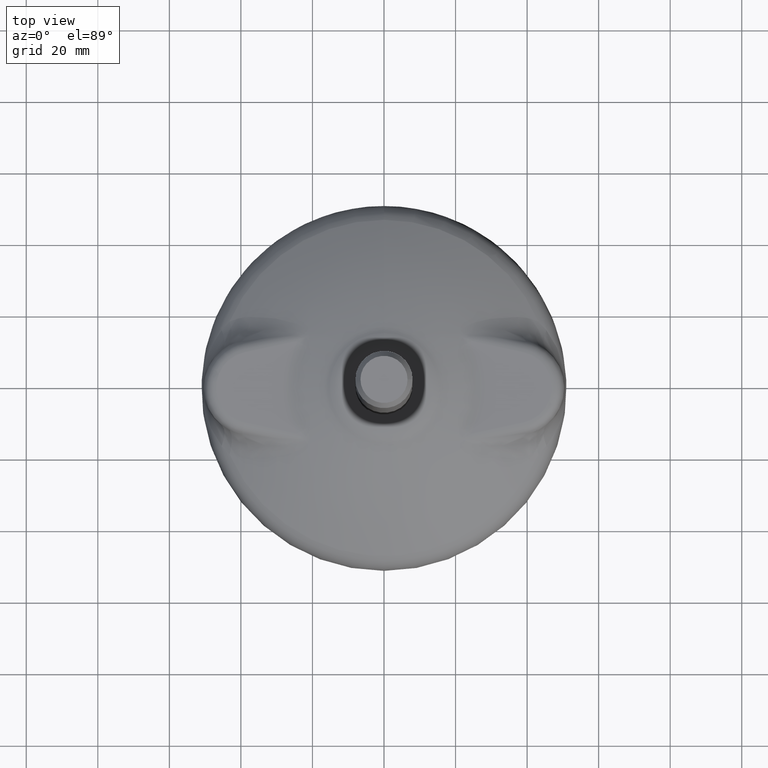
[diagram: clean part render]
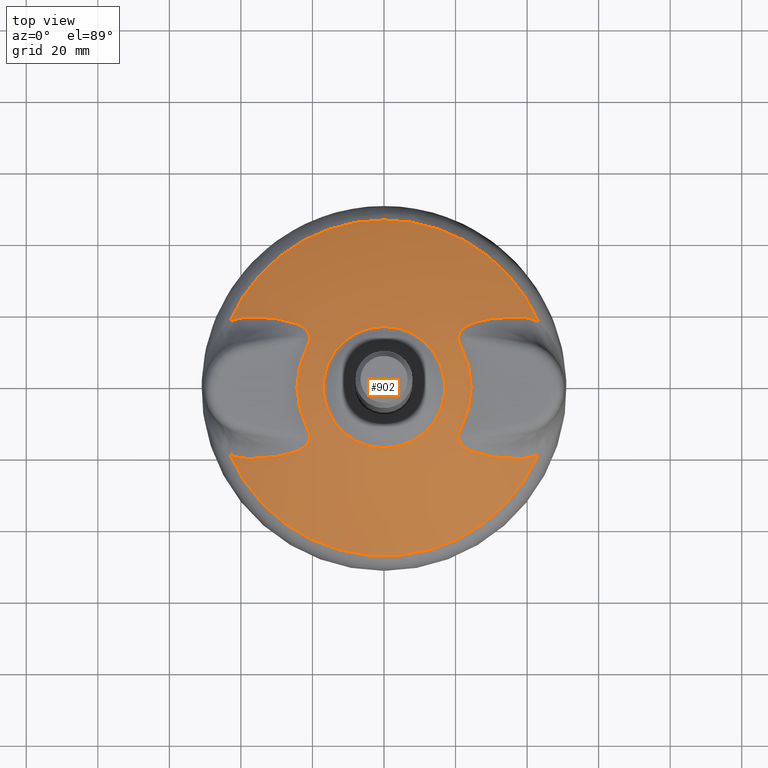
[diagram: same view with one face highlighted and labeled with its STEP entity id]
A machine part, top view. The second image highlights one B-rep face of the part: STEP entity #902.
In plain terms, the highlighted face is a freeform B-spline surface patch.
Its self-contained STEP definition (entity closure, byte-faithful):
#19=(
BOUNDED_SURFACE()
B_SPLINE_SURFACE(2,2,((#2693,#2694,#2695,#2696,#2697,#2698,#2699,#2700,
#2701),(#2702,#2703,#2704,#2705,#2706,#2707,#2708,#2709,#2710),(#2711,#2712,
#2713,#2714,#2715,#2716,#2717,#2718,#2719)),.UNSPECIFIED.,.F.,.T.,.F.)
B_SPLINE_SURFACE_WITH_KNOTS((3,3),(3,2,2,2,3),(1.04289979225028,1.31130726421588),
(-3.14159265358979,-1.5707963267949,0.,1.5707963267949,3.14159265358979),
 .UNSPECIFIED.)
GEOMETRIC_REPRESENTATION_ITEM()
RATIONAL_B_SPLINE_SURFACE(((1.,0.707106781186548,1.,0.707106781186548,1.,
0.707106781186548,1.,0.707106781186548,1.),(0.991008186481212,0.700748608872248,
0.991008186481212,0.700748608872248,0.991008186481212,0.700748608872248,
0.991008186481212,0.700748608872248,0.991008186481212),(1.,0.707106781186548,
1.,0.707106781186548,1.,0.707106781186548,1.,0.707106781186548,1.)))
REPRESENTATION_ITEM('')
SURFACE()
);
#67=B_SPLINE_CURVE_WITH_KNOTS('',3,(#2724,#2725,#2726,#2727,#2728,#2729,
#2730,#2731,#2732,#2733),.UNSPECIFIED.,.F.,.F.,(4,2,2,2,4),(0.,0.125,0.249999999999999,
0.499999999999999,1.),.UNSPECIFIED.);
#68=B_SPLINE_CURVE_WITH_KNOTS('',3,(#2735,#2736,#2737,#2738,#2739,#2740,
#2741,#2742,#2743,#2744,#2745,#2746,#2747,#2748,#2749,#2750,#2751,#2752,
#2753,#2754,#2755,#2756,#2757,#2758,#2759,#2760,#2761,#2762,#2763,#2764,
#2765,#2766,#2767,#2768,#2769,#2770,#2771,#2772,#2773,#2774,#2775,#2776,
#2777,#2778,#2779,#2780,#2781,#2782,#2783,#2784,#2785,#2786,#2787,#2788,
#2789,#2790,#2791,#2792,#2793,#2794,#2795,#2796,#2797,#2798,#2799,#2800,
#2801,#2802,#2803,#2804,#2805,#2806,#2807,#2808,#2809,#2810,#2811,#2812,
#2813,#2814,#2815,#2816,#2817,#2818,#2819,#2820,#2821,#2822,#2823,#2824,
#2825,#2826,#2827,#2828,#2829,#2830,#2831,#2832,#2833,#2834,#2835,#2836,
#2837,#2838,#2839,#2840,#2841,#2842,#2843,#2844,#2845,#2846,#2847,#2848,
#2849,#2850,#2851,#2852,#2853,#2854,#2855,#2856,#2857,#2858,#2859,#2860,
#2861,#2862,#2863,#2864,#2865,#2866,#2867,#2868,#2869,#2870,#2871,#2872,
#2873),.UNSPECIFIED.,.F.,.F.,(4,3,3,3,3,3,3,3,3,3,3,3,3,3,3,3,3,3,3,3,3,
3,3,3,3,3,3,3,3,3,3,3,3,3,3,3,3,3,3,3,3,3,3,3,3,3,4),(0.,0.125000000000001,
0.125437891421606,0.250000000000001,0.250888828522599,0.375000000000002,
0.376366797023829,0.437500000000002,0.43912695423949,0.500000000000002,
0.501909193691675,0.562500000000002,0.564722430065472,0.625000000000002,
0.62758778369719,0.675236491553727,0.687500000000003,0.690544690351199,
0.718750000000002,0.722056294855948,0.750000000000002,0.753563942516516,
0.765625000000002,0.769316012917189,0.781250000000002,0.785062869264019,
0.805943820083849,0.812500000000002,0.816467048866696,0.828125000000002,
0.832105601113408,0.843750000000002,0.84767315821284,0.875000000000001,
0.878569036210996,0.888854885007491,0.890625000000001,0.906250000000001,
0.909171475343011,0.921875000000001,0.924381116324889,0.937500000000001,
0.93954209145546,0.961007636173622,0.96875,0.969797786121111,1.),
 .UNSPECIFIED.);
#69=B_SPLINE_CURVE_WITH_KNOTS('',3,(#2877,#2878,#2879,#2880,#2881,#2882,
#2883,#2884,#2885,#2886,#2887,#2888,#2889,#2890,#2891,#2892,#2893,#2894,
#2895,#2896,#2897,#2898,#2899,#2900,#2901,#2902,#2903,#2904,#2905,#2906,
#2907,#2908,#2909,#2910,#2911,#2912,#2913,#2914,#2915,#2916,#2917,#2918,
#2919,#2920,#2921,#2922,#2923,#2924,#2925,#2926,#2927,#2928,#2929,#2930,
#2931,#2932,#2933,#2934,#2935,#2936,#2937,#2938,#2939,#2940,#2941,#2942,
#2943,#2944,#2945,#2946,#2947,#2948,#2949,#2950,#2951,#2952,#2953,#2954,
#2955,#2956,#2957,#2958,#2959,#2960,#2961,#2962,#2963,#2964,#2965,#2966,
#2967,#2968,#2969,#2970,#2971,#2972,#2973,#2974,#2975,#2976,#2977,#2978,
#2979,#2980,#2981,#2982,#2983,#2984,#2985,#2986,#2987,#2988,#2989,#2990,
#2991,#2992,#2993,#2994,#2995,#2996,#2997,#2998,#2999,#3000,#3001,#3002,
#3003,#3004,#3005,#3006,#3007,#3008,#3009,#3010,#3011,#3012,#3013,#3014,
#3015,#3016,#3017,#3018,#3019,#3020,#3021,#3022,#3023,#3024,#3025,#3026,
#3027,#3028,#3029,#3030),.UNSPECIFIED.,.F.,.F.,(4,3,3,3,3,3,3,3,3,3,3,3,
3,3,3,3,3,3,3,3,3,3,3,3,3,3,3,3,3,3,3,3,3,3,3,3,3,3,3,3,3,3,3,3,3,3,3,3,
3,3,3,4),(0.,0.030204811064784,0.03125,0.0502740707823176,0.0604664544251353,
0.062500000000001,0.074541883804142,0.0756288984887031,0.078125000000001,
0.0908348487928982,0.093750000000002,0.105255062287116,0.106099535359361,
0.109375000000002,0.119340557230366,0.121432066182604,0.125000000000002,
0.152329162091134,0.156250000000003,0.160104553921435,0.167899058199915,
0.171875000000003,0.183527053335978,0.187500000000003,0.214904397286689,
0.218750000000004,0.230645060430719,0.234375000000004,0.246397942669153,
0.250000000000004,0.277910693240157,0.281250000000004,0.309424038940148,
0.312500000000004,0.363404063042249,0.372371779612796,0.375000000000004,
0.43168552653651,0.435247778132894,0.437500000000004,0.466668689002127,
0.468750000000004,0.498076749880921,0.500000000000004,0.560864087320551,
0.623625116674514,0.625000000000003,0.749106126180359,0.750000000000002,
0.874559929998551,0.875000000000001,1.),.UNSPECIFIED.);
#70=B_SPLINE_CURVE_WITH_KNOTS('',3,(#3031,#3032,#3033,#3034,#3035,#3036,
#3037,#3038,#3039,#3040),.UNSPECIFIED.,.F.,.F.,(4,2,2,2,4),(0.,0.499999999999999,
0.749999999999999,0.875,1.),.UNSPECIFIED.);
#71=B_SPLINE_CURVE_WITH_KNOTS('',3,(#3042,#3043,#3044,#3045,#3046,#3047,
#3048,#3049,#3050,#3051),.UNSPECIFIED.,.F.,.F.,(4,2,2,2,4),(0.,0.125000000000001,
0.250000000000001,0.500000000000002,1.),.UNSPECIFIED.);
#72=B_SPLINE_CURVE_WITH_KNOTS('',3,(#3053,#3054,#3055,#3056,#3057,#3058,
#3059,#3060,#3061,#3062,#3063,#3064,#3065,#3066,#3067,#3068,#3069,#3070,
#3071,#3072,#3073,#3074,#3075,#3076,#3077,#3078,#3079,#3080,#3081,#3082,
#3083,#3084,#3085,#3086,#3087,#3088,#3089,#3090,#3091,#3092,#3093,#3094,
#3095,#3096,#3097,#3098,#3099,#3100,#3101,#3102,#3103,#3104,#3105,#3106,
#3107,#3108,#3109,#3110,#3111,#3112,#3113,#3114,#3115,#3116,#3117,#3118,
#3119,#3120,#3121,#3122,#3123,#3124,#3125,#3126,#3127,#3128,#3129,#3130,
#3131,#3132,#3133,#3134,#3135,#3136,#3137,#3138,#3139,#3140,#3141,#3142,
#3143,#3144,#3145,#3146,#3147,#3148,#3149,#3150,#3151,#3152,#3153,#3154,
#3155,#3156,#3157,#3158,#3159,#3160,#3161,#3162,#3163,#3164,#3165,#3166,
#3167,#3168,#3169,#3170,#3171,#3172,#3173,#3174,#3175,#3176,#3177,#3178,
#3179,#3180,#3181,#3182,#3183,#3184,#3185,#3186,#3187,#3188,#3189,#3190,
#3191),.UNSPECIFIED.,.F.,.F.,(4,3,3,3,3,3,3,3,3,3,3,3,3,3,3,3,3,3,3,3,3,
3,3,3,3,3,3,3,3,3,3,3,3,3,3,3,3,3,3,3,3,3,3,3,3,3,4),(0.,0.125,0.125437891421604,
0.25,0.250888828522599,0.375,0.376366797023826,0.437500000000001,0.439126954239489,
0.500000000000001,0.501909193691673,0.562500000000001,0.56472243006547,
0.625000000000001,0.627587783697188,0.675236490874014,0.687500000000002,
0.690544690351211,0.718750000000002,0.722056294855937,0.750000000000002,
0.753563942516519,0.765625000000002,0.769316012917194,0.781250000000002,
0.785062869263999,0.805943820116547,0.812500000000002,0.816467048866698,
0.828125000000002,0.832105601113413,0.843750000000001,0.847673158212831,
0.875000000000001,0.878569036211012,0.888854884963172,0.890625000000001,
0.906250000000001,0.909171475343,0.921875000000001,0.924381116324893,0.937500000000001,
0.939542091455459,0.961007636250831,0.96875,0.969797786121099,1.),
 .UNSPECIFIED.);
#73=B_SPLINE_CURVE_WITH_KNOTS('',3,(#3195,#3196,#3197,#3198,#3199,#3200,
#3201,#3202,#3203,#3204,#3205,#3206,#3207,#3208,#3209,#3210,#3211,#3212,
#3213,#3214,#3215,#3216,#3217,#3218,#3219,#3220,#3221,#3222,#3223,#3224,
#3225,#3226,#3227,#3228,#3229,#3230,#3231,#3232,#3233,#3234,#3235,#3236,
#3237,#3238,#3239,#3240,#3241,#3242,#3243,#3244,#3245,#3246,#3247,#3248,
#3249,#3250,#3251,#3252,#3253,#3254,#3255,#3256,#3257,#3258,#3259,#3260,
#3261,#3262,#3263,#3264,#3265,#3266,#3267,#3268,#3269,#3270,#3271,#3272,
#3273,#3274,#3275,#3276,#3277,#3278,#3279,#3280,#3281,#3282,#3283,#3284,
#3285,#3286,#3287,#3288,#3289,#3290,#3291,#3292,#3293,#3294,#3295,#3296,
#3297,#3298,#3299,#3300,#3301,#3302,#3303,#3304,#3305,#3306,#3307,#3308,
#3309,#3310,#3311,#3312,#3313,#3314,#3315,#3316,#3317,#3318,#3319,#3320,
#3321,#3322,#3323,#3324,#3325,#3326,#3327,#3328,#3329,#3330,#3331,#3332,
#3333,#3334,#3335,#3336,#3337,#3338,#3339,#3340,#3341,#3342,#3343,#3344,
#3345,#3346,#3347,#3348),.UNSPECIFIED.,.F.,.F.,(4,3,3,3,3,3,3,3,3,3,3,3,
3,3,3,3,3,3,3,3,3,3,3,3,3,3,3,3,3,3,3,3,3,3,3,3,3,3,3,3,3,3,3,3,3,3,3,3,
3,3,3,4),(0.,0.0302048110647845,0.031249999999999,0.0502740707722236,0.0604664544251323,
0.062499999999998,0.0745418838062336,0.0756288984886995,0.078124999999997,
0.0908348487928942,0.093749999999997,0.105255062238333,0.106099535359362,
0.109374999999997,0.119340557213789,0.121432066182594,0.124999999999996,
0.152329162091128,0.156249999999996,0.160104553921427,0.167899058199895,
0.171874999999996,0.183527053335969,0.187499999999995,0.214904397286686,
0.218749999999995,0.230645060430716,0.234374999999994,0.246397942669134,
0.249999999999994,0.277910693240141,0.281249999999994,0.309424038940149,
0.312499999999994,0.363404062710816,0.372371779612788,0.374999999999994,
0.431685528688812,0.435247778132884,0.437499999999994,0.466668689002116,
0.468749999999994,0.498076749880913,0.499999999999994,0.560864087320555,
0.623625116674508,0.624999999999996,0.749106126180356,0.749999999999997,
0.874559929998551,0.874999999999999,1.),.UNSPECIFIED.);
#74=B_SPLINE_CURVE_WITH_KNOTS('',3,(#3349,#3350,#3351,#3352,#3353,#3354,
#3355,#3356,#3357,#3358),.UNSPECIFIED.,.F.,.F.,(4,2,2,2,4),(0.,0.499999999999999,
0.749999999999998,0.874999999999999,1.),.UNSPECIFIED.);
#153=FACE_OUTER_BOUND('',#219,.T.);
#219=EDGE_LOOP('',(#601,#602,#603,#604,#605,#606,#607,#608,#609,#610,#611,
#612,#613,#614,#615,#616));
#285=CIRCLE('',#999,46.9837143607323);
#289=CIRCLE('',#1003,46.9837143607323);
#290=CIRCLE('',#1004,46.9837143607323);
#291=CIRCLE('',#1005,16.986756733163);
#292=CIRCLE('',#1006,121.381);
#293=CIRCLE('',#1007,24.3449299520576);
#294=CIRCLE('',#1008,24.3449299520576);
#367=VERTEX_POINT('',#2300);
#368=VERTEX_POINT('',#2314);
#371=VERTEX_POINT('',#2321);
#375=VERTEX_POINT('',#2557);
#376=VERTEX_POINT('',#2571);
#378=VERTEX_POINT('',#2720);
#379=VERTEX_POINT('',#2723);
#380=VERTEX_POINT('',#2734);
#381=VERTEX_POINT('',#2874);
#382=VERTEX_POINT('',#2876);
#383=VERTEX_POINT('',#3041);
#384=VERTEX_POINT('',#3052);
#385=VERTEX_POINT('',#3192);
#386=VERTEX_POINT('',#3194);
#452=EDGE_CURVE('',#368,#367,#285,.T.);
#456=EDGE_CURVE('',#371,#368,#289,.T.);
#461=EDGE_CURVE('',#376,#375,#290,.T.);
#464=EDGE_CURVE('',#378,#378,#291,.T.);
#465=EDGE_CURVE('',#378,#368,#292,.T.);
#466=EDGE_CURVE('',#367,#379,#67,.T.);
#467=EDGE_CURVE('',#379,#380,#68,.T.);
#468=EDGE_CURVE('',#380,#381,#293,.F.);
#469=EDGE_CURVE('',#381,#382,#69,.T.);
#470=EDGE_CURVE('',#382,#376,#70,.T.);
#471=EDGE_CURVE('',#375,#383,#71,.T.);
#472=EDGE_CURVE('',#383,#384,#72,.T.);
#473=EDGE_CURVE('',#384,#385,#294,.F.);
#474=EDGE_CURVE('',#385,#386,#73,.T.);
#475=EDGE_CURVE('',#386,#371,#74,.T.);
#601=ORIENTED_EDGE('',*,*,#464,.F.);
#602=ORIENTED_EDGE('',*,*,#465,.T.);
#603=ORIENTED_EDGE('',*,*,#452,.T.);
#604=ORIENTED_EDGE('',*,*,#466,.T.);
#605=ORIENTED_EDGE('',*,*,#467,.T.);
#606=ORIENTED_EDGE('',*,*,#468,.T.);
#607=ORIENTED_EDGE('',*,*,#469,.T.);
#608=ORIENTED_EDGE('',*,*,#470,.T.);
#609=ORIENTED_EDGE('',*,*,#461,.T.);
#610=ORIENTED_EDGE('',*,*,#471,.T.);
#611=ORIENTED_EDGE('',*,*,#472,.T.);
#612=ORIENTED_EDGE('',*,*,#473,.T.);
#613=ORIENTED_EDGE('',*,*,#474,.T.);
#614=ORIENTED_EDGE('',*,*,#475,.T.);
#615=ORIENTED_EDGE('',*,*,#456,.T.);
#616=ORIENTED_EDGE('',*,*,#465,.F.);
#902=ADVANCED_FACE('',(#153),#19,.F.);
#999=AXIS2_PLACEMENT_3D('',#2315,#1141,#1142);
#1003=AXIS2_PLACEMENT_3D('',#2322,#1149,#1150);
#1004=AXIS2_PLACEMENT_3D('',#2572,#1151,#1152);
#1005=AXIS2_PLACEMENT_3D('',#2721,#1153,#1154);
#1006=AXIS2_PLACEMENT_3D('',#2722,#1155,#1156);
#1007=AXIS2_PLACEMENT_3D('',#2875,#1157,#1158);
#1008=AXIS2_PLACEMENT_3D('',#3193,#1159,#1160);
#1141=DIRECTION('center_axis',(0.,1.171453E-15,1.));
#1142=DIRECTION('ref_axis',(0.,-1.,1.171453E-15));
#1149=DIRECTION('center_axis',(0.,1.171453E-15,1.));
#1150=DIRECTION('ref_axis',(0.,-1.,1.171453E-15));
#1151=DIRECTION('center_axis',(0.,1.171453E-15,1.));
#1152=DIRECTION('ref_axis',(0.,-1.,1.171453E-15));
#1153=DIRECTION('center_axis',(0.,1.171453E-15,1.));
#1154=DIRECTION('ref_axis',(0.,-1.,1.171453E-15));
#1155=DIRECTION('center_axis',(-1.,-1.22464679914735E-16,1.43461616680156E-31));
#1156=DIRECTION('ref_axis',(-1.22464679914735E-16,1.,-1.15968569017857E-15));
#1157=DIRECTION('center_axis',(0.,0.,-1.));
#1158=DIRECTION('ref_axis',(-1.,0.,0.));
#1159=DIRECTION('center_axis',(0.,0.,-1.));
#1160=DIRECTION('ref_axis',(-1.,0.,0.));
#2300=CARTESIAN_POINT('',(-43.1479021368188,18.5937612204306,8.26123386129241));
#2314=CARTESIAN_POINT('',(-5.75384554039243E-15,46.9837143607323,8.26123386129238));
#2315=CARTESIAN_POINT('Origin',(0.,1.93553E-14,8.26123386129243));
#2321=CARTESIAN_POINT('',(43.147902136819,18.5937612204301,8.26123386129241));
#2322=CARTESIAN_POINT('Origin',(0.,1.93553E-14,8.26123386129243));
#2557=CARTESIAN_POINT('',(43.1479021368188,-18.5937612204305,8.26123386129245));
#2571=CARTESIAN_POINT('',(-43.1479021368191,-18.59376122043,8.26123386129245));
#2572=CARTESIAN_POINT('Origin',(0.,1.93553E-14,8.26123386129243));
#2693=CARTESIAN_POINT('Ctrl Pts',(0.,46.9837143607323,8.26123386129238));
#2694=CARTESIAN_POINT('Ctrl Pts',(-46.9837143607323,46.9837143607323,8.26123386129238));
#2695=CARTESIAN_POINT('Ctrl Pts',(-46.9837143607323,9.67761242527804E-15,
8.26123386129243));
#2696=CARTESIAN_POINT('Ctrl Pts',(-46.9837143607323,-46.9837143607323,8.26123386129249));
#2697=CARTESIAN_POINT('Ctrl Pts',(0.,-46.9837143607323,8.26123386129249));
#2698=CARTESIAN_POINT('Ctrl Pts',(46.9837143607323,-46.9837143607323,8.26123386129249));
#2699=CARTESIAN_POINT('Ctrl Pts',(46.9837143607323,9.67761242527804E-15,
8.26123386129243));
#2700=CARTESIAN_POINT('Ctrl Pts',(46.9837143607323,46.9837143607323,8.26123386129238));
#2701=CARTESIAN_POINT('Ctrl Pts',(0.,46.9837143607323,8.26123386129238));
#2702=CARTESIAN_POINT('Ctrl Pts',(0.,32.8263864138173,16.5162996421554));
#2703=CARTESIAN_POINT('Ctrl Pts',(-32.8263864138173,32.8263864138173,16.5162996421554));
#2704=CARTESIAN_POINT('Ctrl Pts',(-32.8263864138173,1.93480339994674E-14,
16.5162996421554));
#2705=CARTESIAN_POINT('Ctrl Pts',(-32.8263864138173,-32.8263864138173,16.5162996421555));
#2706=CARTESIAN_POINT('Ctrl Pts',(0.,-32.8263864138173,16.5162996421555));
#2707=CARTESIAN_POINT('Ctrl Pts',(32.8263864138173,-32.8263864138173,16.5162996421555));
#2708=CARTESIAN_POINT('Ctrl Pts',(32.8263864138173,1.93480339994674E-14,
16.5162996421554));
#2709=CARTESIAN_POINT('Ctrl Pts',(32.8263864138173,32.8263864138173,16.5162996421554));
#2710=CARTESIAN_POINT('Ctrl Pts',(0.,32.8263864138173,16.5162996421554));
#2711=CARTESIAN_POINT('Ctrl Pts',(0.,16.9867567331629,20.721317742308));
#2712=CARTESIAN_POINT('Ctrl Pts',(-16.9867567331629,16.9867567331629,20.721317742308));
#2713=CARTESIAN_POINT('Ctrl Pts',(-16.9867567331629,2.42740150679454E-14,
20.721317742308));
#2714=CARTESIAN_POINT('Ctrl Pts',(-16.9867567331629,-16.9867567331629,20.721317742308));
#2715=CARTESIAN_POINT('Ctrl Pts',(0.,-16.9867567331629,20.721317742308));
#2716=CARTESIAN_POINT('Ctrl Pts',(16.9867567331629,-16.9867567331629,20.721317742308));
#2717=CARTESIAN_POINT('Ctrl Pts',(16.9867567331629,2.42740150679454E-14,
20.721317742308));
#2718=CARTESIAN_POINT('Ctrl Pts',(16.9867567331629,16.9867567331629,20.721317742308));
#2719=CARTESIAN_POINT('Ctrl Pts',(0.,16.9867567331629,20.721317742308));
#2720=CARTESIAN_POINT('',(-2.08027772611628E-15,16.986756733163,20.7213177423081));
#2721=CARTESIAN_POINT('Origin',(0.,4.854811E-14,20.7213177423081));
#2722=CARTESIAN_POINT('Origin',(1.73385493823278E-15,-14.1579999999998,
-96.5959925278824));
#2723=CARTESIAN_POINT('',(-37.4545312795013,19.8008125886456,10.8206559596953));
#2724=CARTESIAN_POINT('Ctrl Pts',(-43.1479021368188,18.5937612204306,8.26123386129241));
#2725=CARTESIAN_POINT('Ctrl Pts',(-42.9190559351884,18.691264631805,8.36127895984655));
#2726=CARTESIAN_POINT('Ctrl Pts',(-42.6884813493952,18.7831284254546,8.46238335616972));
#2727=CARTESIAN_POINT('Ctrl Pts',(-42.2238702088701,18.9555020210209,8.66676512749059));
#2728=CARTESIAN_POINT('Ctrl Pts',(-41.9898111120091,19.0359966737657,8.77005369160393));
#2729=CARTESIAN_POINT('Ctrl Pts',(-41.286323224514,19.2591220755424,9.0815380913931));
#2730=CARTESIAN_POINT('Ctrl Pts',(-40.8143097595685,19.383930016623,9.29190968286592));
#2731=CARTESIAN_POINT('Ctrl Pts',(-39.3894709985333,19.6869253718619,9.93160344412483));
#2732=CARTESIAN_POINT('Ctrl Pts',(-38.4279257794698,19.7943653377608,10.3694107537443));
#2733=CARTESIAN_POINT('Ctrl Pts',(-37.4545312795013,19.8008125886456,10.8206559596953));
#2734=CARTESIAN_POINT('',(-21.5051195353774,11.4107601911406,18.5164374964506));
#2735=CARTESIAN_POINT('Ctrl Pts',(-37.4545312795013,19.8008125886456,10.8206559596953));
#2736=CARTESIAN_POINT('Ctrl Pts',(-36.5861334567431,19.8065643970145,11.2232269156546));
#2737=CARTESIAN_POINT('Ctrl Pts',(-35.7163861372896,19.7906875406363,11.6181685751302));
#2738=CARTESIAN_POINT('Ctrl Pts',(-34.8455735051601,19.7519334756606,12.0058752121379));
#2739=CARTESIAN_POINT('Ctrl Pts',(-34.8425229341087,19.7517977150797,12.0072333994215));
#2740=CARTESIAN_POINT('Ctrl Pts',(-34.8394723499999,19.7516616736871,12.0085914979259));
#2741=CARTESIAN_POINT('Ctrl Pts',(-34.836421752848,19.7515253514293,12.0099495076671));
#2742=CARTESIAN_POINT('Ctrl Pts',(-33.9686522672685,19.7127472730499,12.3962474538996));
#2743=CARTESIAN_POINT('Ctrl Pts',(-33.0998147382907,19.6513123966545,12.7753500657386));
#2744=CARTESIAN_POINT('Ctrl Pts',(-32.2304724166259,19.5641446884823,13.1479131341555));
#2745=CARTESIAN_POINT('Ctrl Pts',(-32.2242691156364,19.5635226923861,13.1505716045801));
#2746=CARTESIAN_POINT('Ctrl Pts',(-32.2180657887781,19.5628993851256,13.153229742344));
#2747=CARTESIAN_POINT('Ctrl Pts',(-32.2118624362862,19.5622747655994,13.1558875476699));
#2748=CARTESIAN_POINT('Ctrl Pts',(-31.3456600977249,19.4750562986447,13.5270090004262));
#2749=CARTESIAN_POINT('Ctrl Pts',(-30.4789328037229,19.3624364307487,13.8916135149757));
#2750=CARTESIAN_POINT('Ctrl Pts',(-29.6128104299154,19.2178115663785,14.2509257103944));
#2751=CARTESIAN_POINT('Ctrl Pts',(-29.6032720985251,19.2162188585518,14.2548827018036));
#2752=CARTESIAN_POINT('Ctrl Pts',(-29.593733870588,19.2146222691314,14.258839040266));
#2753=CARTESIAN_POINT('Ctrl Pts',(-29.5841957459397,19.213021789219,14.2627947281005));
#2754=CARTESIAN_POINT('Ctrl Pts',(-29.1575807475401,19.1414365709041,14.439722145325));
#2755=CARTESIAN_POINT('Ctrl Pts',(-28.7311221395197,19.0619925466311,14.615383664913));
#2756=CARTESIAN_POINT('Ctrl Pts',(-28.3050695450992,18.9732518416129,14.7900305589652));
#2757=CARTESIAN_POINT('Ctrl Pts',(-28.2937308937446,18.9708901615566,14.7946784833476));
#2758=CARTESIAN_POINT('Ctrl Pts',(-28.2823926695255,18.9685219166938,14.799325633689));
#2759=CARTESIAN_POINT('Ctrl Pts',(-28.2710548773692,18.9661470803545,14.8039720146274));
#2760=CARTESIAN_POINT('Ctrl Pts',(-27.8468475309072,18.8772917716764,14.9778179364234));
#2761=CARTESIAN_POINT('Ctrl Pts',(-27.4250506610948,18.7796079855272,15.1498418972986));
#2762=CARTESIAN_POINT('Ctrl Pts',(-27.0062452279049,18.6712314889762,15.3203600232842));
#2763=CARTESIAN_POINT('Ctrl Pts',(-26.9931100104848,18.6678324193066,15.3257080739095));
#2764=CARTESIAN_POINT('Ctrl Pts',(-26.9799777919357,18.6644228222904,15.3310546254812));
#2765=CARTESIAN_POINT('Ctrl Pts',(-26.9668485954999,18.6610026424528,15.336399685393));
#2766=CARTESIAN_POINT('Ctrl Pts',(-26.5501760485006,18.552458677017,15.5060322853923));
#2767=CARTESIAN_POINT('Ctrl Pts',(-26.1365296922048,18.4333061795529,15.6741566746963));
#2768=CARTESIAN_POINT('Ctrl Pts',(-25.7270763665978,18.3005940850687,15.8411449753301));
#2769=CARTESIAN_POINT('Ctrl Pts',(-25.7120578937192,18.29572629461,15.8472699940008));
#2770=CARTESIAN_POINT('Ctrl Pts',(-25.69704507905,18.2908401965899,15.8533934941978));
#2771=CARTESIAN_POINT('Ctrl Pts',(-25.6820379819021,18.2859356498296,15.8595154927445));
#2772=CARTESIAN_POINT('Ctrl Pts',(-25.2750099444857,18.1529127192386,16.0255586008146));
#2773=CARTESIAN_POINT('Ctrl Pts',(-24.8721455198789,18.0064408892385,16.1904838187842));
#2774=CARTESIAN_POINT('Ctrl Pts',(-24.4754620053718,17.8413650353033,16.3548854353363));
#2775=CARTESIAN_POINT('Ctrl Pts',(-24.458431937091,17.8342781437103,16.3619433811621));
#2776=CARTESIAN_POINT('Ctrl Pts',(-24.4414133186328,17.8271567013759,16.369000405167));
#2777=CARTESIAN_POINT('Ctrl Pts',(-24.4244063145825,17.8200003248671,16.3760565473281));
#2778=CARTESIAN_POINT('Ctrl Pts',(-24.1112573568908,17.688230388319,16.5059808747721));
#2779=CARTESIAN_POINT('Ctrl Pts',(-23.8019641996164,17.5448533771293,16.6355828694606));
#2780=CARTESIAN_POINT('Ctrl Pts',(-23.498538350899,17.3846870171197,16.7654015247216));
#2781=CARTESIAN_POINT('Ctrl Pts',(-23.4204446181211,17.3434644615218,16.7988133893218));
#2782=CARTESIAN_POINT('Ctrl Pts',(-23.3427393307795,17.3011298975299,16.8322396695275));
#2783=CARTESIAN_POINT('Ctrl Pts',(-23.2654562976405,17.2575953145453,16.8656896871688));
#2784=CARTESIAN_POINT('Ctrl Pts',(-23.2462690555605,17.246786880292,16.8739944024471));
#2785=CARTESIAN_POINT('Ctrl Pts',(-23.2271072056189,17.2359032690648,16.8823010486616));
#2786=CARTESIAN_POINT('Ctrl Pts',(-23.2079712038223,17.224943126806,16.8906097867464));
#2787=CARTESIAN_POINT('Ctrl Pts',(-23.030699693798,17.1234108951024,16.967580021299));
#2788=CARTESIAN_POINT('Ctrl Pts',(-22.8574173212838,17.0161543632869,17.0439960740147));
#2789=CARTESIAN_POINT('Ctrl Pts',(-22.6892436756541,16.9019934842365,17.1198014532916));
#2790=CARTESIAN_POINT('Ctrl Pts',(-22.6695299527284,16.888611268907,17.1286875438426));
#2791=CARTESIAN_POINT('Ctrl Pts',(-22.6498864473849,16.8751334768339,17.1375653938804));
#2792=CARTESIAN_POINT('Ctrl Pts',(-22.6303150234358,16.8615582645109,17.1464348803853));
#2793=CARTESIAN_POINT('Ctrl Pts',(-22.4649038535574,16.7468250822174,17.2213968321992));
#2794=CARTESIAN_POINT('Ctrl Pts',(-22.3045638995242,16.6251294235178,17.2957870439628));
#2795=CARTESIAN_POINT('Ctrl Pts',(-22.1507600391734,16.4946048092149,17.3695811503355));
#2796=CARTESIAN_POINT('Ctrl Pts',(-22.1311438818212,16.4779576888718,17.378992856901));
#2797=CARTESIAN_POINT('Ctrl Pts',(-22.1116346110516,16.4611658949103,17.3883949325317));
#2798=CARTESIAN_POINT('Ctrl Pts',(-22.0922351640228,16.4442256293216,17.3977873404782));
#2799=CARTESIAN_POINT('Ctrl Pts',(-22.0265837555957,16.3868965573447,17.4295730305183));
#2800=CARTESIAN_POINT('Ctrl Pts',(-21.9621978579218,16.3278570955218,17.4612476145416));
#2801=CARTESIAN_POINT('Ctrl Pts',(-21.899240652081,16.26689358906,17.4928073635605));
#2802=CARTESIAN_POINT('Ctrl Pts',(-21.8799740280469,16.2482370914738,17.5024655084995));
#2803=CARTESIAN_POINT('Ctrl Pts',(-21.8608418550532,16.2294004473032,17.5121126996835));
#2804=CARTESIAN_POINT('Ctrl Pts',(-21.8418484068247,16.2103767864233,17.5217491094679));
#2805=CARTESIAN_POINT('Ctrl Pts',(-21.7804377396438,16.148868434027,17.5529060824919));
#2806=CARTESIAN_POINT('Ctrl Pts',(-21.7203289015144,16.0852144485893,17.5840334238406));
#2807=CARTESIAN_POINT('Ctrl Pts',(-21.6622924881665,16.0198359555861,17.6148151873281));
#2808=CARTESIAN_POINT('Ctrl Pts',(-21.6437500467248,15.998947744063,17.6246498585976));
#2809=CARTESIAN_POINT('Ctrl Pts',(-21.6254171163775,15.9778811849987,17.6344503361938));
#2810=CARTESIAN_POINT('Ctrl Pts',(-21.6073194535441,15.9566503986848,17.6442060395489));
#2811=CARTESIAN_POINT('Ctrl Pts',(-21.5082086838296,15.8403812653393,17.6976325663626));
#2812=CARTESIAN_POINT('Ctrl Pts',(-21.4157783286471,15.7189529273252,17.7498823483253));
#2813=CARTESIAN_POINT('Ctrl Pts',(-21.3312156731483,15.5914636517784,17.8007853527637));
#2814=CARTESIAN_POINT('Ctrl Pts',(-21.3046647757097,15.5514346973942,17.8167678268497));
#2815=CARTESIAN_POINT('Ctrl Pts',(-21.2788897712334,15.510807978725,17.8326175000204));
#2816=CARTESIAN_POINT('Ctrl Pts',(-21.2539281935763,15.4695548399641,17.84832901767));
#2817=CARTESIAN_POINT('Ctrl Pts',(-21.2388243069195,15.4445931672427,17.8578358278983));
#2818=CARTESIAN_POINT('Ctrl Pts',(-21.2240171443061,15.4193980174389,17.8672932256799));
#2819=CARTESIAN_POINT('Ctrl Pts',(-21.2095163213946,15.393964605068,17.8766993181334));
#2820=CARTESIAN_POINT('Ctrl Pts',(-21.1669028092913,15.3192235346814,17.9043409655806));
#2821=CARTESIAN_POINT('Ctrl Pts',(-21.1268444291962,15.2420990220524,17.9316294328315));
#2822=CARTESIAN_POINT('Ctrl Pts',(-21.0901309157291,15.1637517536428,17.9580968338935));
#2823=CARTESIAN_POINT('Ctrl Pts',(-21.0775951063992,15.1370001211907,17.9671341136807));
#2824=CARTESIAN_POINT('Ctrl Pts',(-21.0654419407411,15.1100932589562,17.9760803469118));
#2825=CARTESIAN_POINT('Ctrl Pts',(-21.0537040288978,15.0830764276833,17.9849167350551));
#2826=CARTESIAN_POINT('Ctrl Pts',(-21.0193672732909,15.0040444546142,18.0107657024161));
#2827=CARTESIAN_POINT('Ctrl Pts',(-20.9884132739986,14.9238384058277,18.0357728335516));
#2828=CARTESIAN_POINT('Ctrl Pts',(-20.9609120505734,14.8424591494159,18.0599137419543));
#2829=CARTESIAN_POINT('Ctrl Pts',(-20.9516465099823,14.8150413581451,18.0680471461761));
#2830=CARTESIAN_POINT('Ctrl Pts',(-20.9427722235304,14.787490369251,18.0760824221894));
#2831=CARTESIAN_POINT('Ctrl Pts',(-20.9342911784809,14.7598054906618,18.0840189799827));
#2832=CARTESIAN_POINT('Ctrl Pts',(-20.8752162792073,14.566965881332,18.139301241718));
#2833=CARTESIAN_POINT('Ctrl Pts',(-20.8352320172211,14.3676290209118,18.1897991228723));
#2834=CARTESIAN_POINT('Ctrl Pts',(-20.8148743936162,14.1615792315937,18.2352642344362));
#2835=CARTESIAN_POINT('Ctrl Pts',(-20.8122155757264,14.134667993,18.24120222869));
#2836=CARTESIAN_POINT('Ctrl Pts',(-20.8098906688998,14.1076295180507,18.2470570614686));
#2837=CARTESIAN_POINT('Ctrl Pts',(-20.807902136865,14.0804701465332,18.2528264708365));
#2838=CARTESIAN_POINT('Ctrl Pts',(-20.8021712508142,14.0021977020071,18.269453725057));
#2839=CARTESIAN_POINT('Ctrl Pts',(-20.7992995401238,13.9238863239708,18.2851667472395));
#2840=CARTESIAN_POINT('Ctrl Pts',(-20.7991106182224,13.8457420090038,18.2999733104612));
#2841=CARTESIAN_POINT('Ctrl Pts',(-20.7990781062249,13.8322939770291,18.3025214054278));
#2842=CARTESIAN_POINT('Ctrl Pts',(-20.7991249287309,13.8188508856396,18.3050426943125));
#2843=CARTESIAN_POINT('Ctrl Pts',(-20.7992500433601,13.8054137750397,18.3075372648734));
#2844=CARTESIAN_POINT('Ctrl Pts',(-20.800354443972,13.6868029198061,18.3295571139677));
#2845=CARTESIAN_POINT('Ctrl Pts',(-20.8075485096151,13.5684932484807,18.3495295016217));
#2846=CARTESIAN_POINT('Ctrl Pts',(-20.8202111527122,13.4504484103476,18.3676258067877));
#2847=CARTESIAN_POINT('Ctrl Pts',(-20.8225787430856,13.4283770449732,18.3710093529856));
#2848=CARTESIAN_POINT('Ctrl Pts',(-20.8251375792533,13.4063156986583,18.3743271426778));
#2849=CARTESIAN_POINT('Ctrl Pts',(-20.8278833324014,13.384266179596,18.3775799878114));
#2850=CARTESIAN_POINT('Ctrl Pts',(-20.839822759822,13.2883877017054,18.391724416057));
#2851=CARTESIAN_POINT('Ctrl Pts',(-20.8553134206412,13.1926445617203,18.4046519304764));
#2852=CARTESIAN_POINT('Ctrl Pts',(-20.8740660682551,13.0970751290433,18.4164286231048));
#2853=CARTESIAN_POINT('Ctrl Pts',(-20.8777655388815,13.0782214548183,18.4187518965621));
#2854=CARTESIAN_POINT('Ctrl Pts',(-20.8815925337362,13.0593717150481,18.4210307274848));
#2855=CARTESIAN_POINT('Ctrl Pts',(-20.8855447316561,13.0405268501005,18.4232655347321));
#2856=CARTESIAN_POINT('Ctrl Pts',(-20.9062334859079,12.9418787591616,18.4349641841615));
#2857=CARTESIAN_POINT('Ctrl Pts',(-20.9304427016163,12.84311466648,18.4454730387041));
#2858=CARTESIAN_POINT('Ctrl Pts',(-20.9575083952113,12.7454820025331,18.4547562415748));
#2859=CARTESIAN_POINT('Ctrl Pts',(-20.9617214535015,12.7302844572421,18.4562012691954));
#2860=CARTESIAN_POINT('Ctrl Pts',(-20.966004021963,12.7151125361004,18.4576168319069));
#2861=CARTESIAN_POINT('Ctrl Pts',(-20.9703536981827,12.699970423925,18.4590028577519));
#2862=CARTESIAN_POINT('Ctrl Pts',(-21.0160755335849,12.5408033674453,18.473572136555));
#2863=CARTESIAN_POINT('Ctrl Pts',(-21.0692150768392,12.3843806265545,18.4849791762267));
#2864=CARTESIAN_POINT('Ctrl Pts',(-21.128450922623,12.2302648337574,18.4936729931728));
#2865=CARTESIAN_POINT('Ctrl Pts',(-21.1498165798027,12.1746771207554,18.4968087483899));
#2866=CARTESIAN_POINT('Ctrl Pts',(-21.1719748875247,12.1193893574888,18.4995917104249));
#2867=CARTESIAN_POINT('Ctrl Pts',(-21.1948624569555,12.0643804905556,18.5020435247611));
#2868=CARTESIAN_POINT('Ctrl Pts',(-21.1979598672728,12.0569360551605,18.5023753326031));
#2869=CARTESIAN_POINT('Ctrl Pts',(-21.2010706673343,12.0494966692072,18.5027010755739));
#2870=CARTESIAN_POINT('Ctrl Pts',(-21.2041947029426,12.0420622722142,18.5030208078416));
#2871=CARTESIAN_POINT('Ctrl Pts',(-21.2942443702434,11.827767347402,18.5122370230012));
#2872=CARTESIAN_POINT('Ctrl Pts',(-21.3953490951322,11.6176374192466,18.5164374964506));
#2873=CARTESIAN_POINT('Ctrl Pts',(-21.5051195353774,11.4107601911406,18.5164374964506));
#2874=CARTESIAN_POINT('',(-21.5051195353776,-11.4107601911403,18.5164374964506));
#2875=CARTESIAN_POINT('Origin',(0.,-1.131577E-13,18.5164374964506));
#2876=CARTESIAN_POINT('',(-37.4545312795014,-19.8008125886451,10.8206559596953));
#2877=CARTESIAN_POINT('Ctrl Pts',(-21.5051195353776,-11.4107601911403,18.5164374964506));
#2878=CARTESIAN_POINT('Ctrl Pts',(-21.3952990703398,-11.6177316977279,18.5164374964506));
#2879=CARTESIAN_POINT('Ctrl Pts',(-21.2942092140907,-11.8278563508912,18.512232348185));
#2880=CARTESIAN_POINT('Ctrl Pts',(-21.2042181520819,-12.0420060537656,18.5030232764601));
#2881=CARTESIAN_POINT('Ctrl Pts',(-21.2011041560341,-12.0494163600061,18.5027046113358));
#2882=CARTESIAN_POINT('Ctrl Pts',(-21.1980033822569,-12.056831464147,18.5023799794109));
#2883=CARTESIAN_POINT('Ctrl Pts',(-21.1949159814589,-12.0642514233111,18.5020493282867));
#2884=CARTESIAN_POINT('Ctrl Pts',(-21.138720465667,-12.1993062670657,18.4960309614829));
#2885=CARTESIAN_POINT('Ctrl Pts',(-21.0869342326189,-12.3360158471687,18.4880166923575));
#2886=CARTESIAN_POINT('Ctrl Pts',(-21.040498926667,-12.4746226602297,18.4776984582486));
#2887=CARTESIAN_POINT('Ctrl Pts',(-21.0156206312564,-12.5488829923317,18.4721703353901));
#2888=CARTESIAN_POINT('Ctrl Pts',(-20.9922776158796,-12.62368764363,18.4659811650985));
#2889=CARTESIAN_POINT('Ctrl Pts',(-20.9706092079502,-12.6990716925408,18.4590858807758));
#2890=CARTESIAN_POINT('Ctrl Pts',(-20.9662860097069,-12.7141120309396,18.4577101599029));
#2891=CARTESIAN_POINT('Ctrl Pts',(-20.9620285940496,-12.7291821386097,18.4563053758908));
#2892=CARTESIAN_POINT('Ctrl Pts',(-20.9578391439993,-12.7442794714322,18.4548713615227));
#2893=CARTESIAN_POINT('Ctrl Pts',(-20.9330308134986,-12.8336801368746,18.4463796736024));
#2894=CARTESIAN_POINT('Ctrl Pts',(-20.9105652201702,-12.9241995179084,18.436845737152));
#2895=CARTESIAN_POINT('Ctrl Pts',(-20.8909434209623,-13.0151494025288,18.4262486980988));
#2896=CARTESIAN_POINT('Ctrl Pts',(-20.8891721711958,-13.0233594020397,18.42529210881));
#2897=CARTESIAN_POINT('Ctrl Pts',(-20.8874240616698,-13.0315729028386,18.4243268692978));
#2898=CARTESIAN_POINT('Ctrl Pts',(-20.88569944048,-13.039789395824,18.4233529717919));
#2899=CARTESIAN_POINT('Ctrl Pts',(-20.8817392091973,-13.058656850744,18.421116620185));
#2900=CARTESIAN_POINT('Ctrl Pts',(-20.8779046490823,-13.0775282798599,18.4188362529138));
#2901=CARTESIAN_POINT('Ctrl Pts',(-20.8741981679039,-13.0964021168282,18.4165115415042));
#2902=CARTESIAN_POINT('Ctrl Pts',(-20.8553252113685,-13.1925054254966,18.404674390503));
#2903=CARTESIAN_POINT('Ctrl Pts',(-20.8397584550817,-13.2887359106613,18.3916800711139));
#2904=CARTESIAN_POINT('Ctrl Pts',(-20.8277778216028,-13.3851082117805,18.3774559493521));
#2905=CARTESIAN_POINT('Ctrl Pts',(-20.8250299243841,-13.4072123165985,18.3741934820797));
#2906=CARTESIAN_POINT('Ctrl Pts',(-20.8224705941414,-13.4293238715136,18.3708663497777));
#2907=CARTESIAN_POINT('Ctrl Pts',(-20.8201038090478,-13.451443087724,18.3674734754651));
#2908=CARTESIAN_POINT('Ctrl Pts',(-20.8107629522665,-13.5387397465124,18.3540830104343));
#2909=CARTESIAN_POINT('Ctrl Pts',(-20.8044197489532,-13.6262105250301,18.3396587185351));
#2910=CARTESIAN_POINT('Ctrl Pts',(-20.801313877583,-13.7137219855411,18.3241631436748));
#2911=CARTESIAN_POINT('Ctrl Pts',(-20.8010859062194,-13.720145338155,18.3230257664593));
#2912=CARTESIAN_POINT('Ctrl Pts',(-20.8008753539454,-13.7265689086985,18.3218826250597));
#2913=CARTESIAN_POINT('Ctrl Pts',(-20.8006823047123,-13.7329926437918,18.3207337082639));
#2914=CARTESIAN_POINT('Ctrl Pts',(-20.7999335230661,-13.7579084378539,18.3162773952528));
#2915=CARTESIAN_POINT('Ctrl Pts',(-20.7994504787821,-13.7828537615794,18.3117283124474));
#2916=CARTESIAN_POINT('Ctrl Pts',(-20.7992372164406,-13.8078054613973,18.307089855546));
#2917=CARTESIAN_POINT('Ctrl Pts',(-20.7985883686276,-13.883720673378,18.2929774126461));
#2918=CARTESIAN_POINT('Ctrl Pts',(-20.8004434818649,-13.9599630040017,18.2779851240734));
#2919=CARTESIAN_POINT('Ctrl Pts',(-20.8049424981345,-14.0358106468137,18.2622132572411));
#2920=CARTESIAN_POINT('Ctrl Pts',(-20.8058867235888,-14.0517290766898,18.2589031562693));
#2921=CARTESIAN_POINT('Ctrl Pts',(-20.806947231641,-14.0676301408777,18.2555587696264));
#2922=CARTESIAN_POINT('Ctrl Pts',(-20.8081250324836,-14.0835072235503,18.2521811046328));
#2923=CARTESIAN_POINT('Ctrl Pts',(-20.8101342591005,-14.1105921567173,18.2464190995782));
#2924=CARTESIAN_POINT('Ctrl Pts',(-20.8124793336409,-14.1375749714819,18.2405682913019));
#2925=CARTESIAN_POINT('Ctrl Pts',(-20.8151588638541,-14.1644477185308,18.2346308997517));
#2926=CARTESIAN_POINT('Ctrl Pts',(-20.8356831558601,-14.3702838403648,18.1891524956167));
#2927=CARTESIAN_POINT('Ctrl Pts',(-20.8759015297562,-14.5703753379514,18.138437274341));
#2928=CARTESIAN_POINT('Ctrl Pts',(-20.9358115541002,-14.7647541085972,18.0825989372763));
#2929=CARTESIAN_POINT('Ctrl Pts',(-20.944406676548,-14.7926410833272,18.0745879683339));
#2930=CARTESIAN_POINT('Ctrl Pts',(-20.953406749868,-14.8204105051042,18.0664714498208));
#2931=CARTESIAN_POINT('Ctrl Pts',(-20.9628113893904,-14.8480625040012,18.0582496157409));
#2932=CARTESIAN_POINT('Ctrl Pts',(-20.9720570381505,-14.8752470301819,18.0501667764268));
#2933=CARTESIAN_POINT('Ctrl Pts',(-20.9816929997696,-14.9023161177976,18.0419827410128));
#2934=CARTESIAN_POINT('Ctrl Pts',(-20.9917197507629,-14.9292723661091,18.033696995493));
#2935=CARTESIAN_POINT('Ctrl Pts',(-21.0119953922794,-14.9837820699757,18.0169419363549));
#2936=CARTESIAN_POINT('Ctrl Pts',(-21.0339541387742,-15.0380113356055,17.9997097367073));
#2937=CARTESIAN_POINT('Ctrl Pts',(-21.0572235426033,-15.091158529025,17.9822706009563));
#2938=CARTESIAN_POINT('Ctrl Pts',(-21.0690931615094,-15.1182686748821,17.9733749757423));
#2939=CARTESIAN_POINT('Ctrl Pts',(-21.0813077649016,-15.1451187228249,17.9644202138165));
#2940=CARTESIAN_POINT('Ctrl Pts',(-21.0938579876746,-15.1717187717333,17.9554072744475));
#2941=CARTESIAN_POINT('Ctrl Pts',(-21.1306381702033,-15.2496739341086,17.9289935954949));
#2942=CARTESIAN_POINT('Ctrl Pts',(-21.1702934367905,-15.3254747583523,17.902083842809));
#2943=CARTESIAN_POINT('Ctrl Pts',(-21.2125703502495,-15.3993102656543,17.8747203517466));
#2944=CARTESIAN_POINT('Ctrl Pts',(-21.2269853136426,-15.4244856166387,17.8653903489224));
#2945=CARTESIAN_POINT('Ctrl Pts',(-21.241704009923,-15.4494332161021,17.8560078531561));
#2946=CARTESIAN_POINT('Ctrl Pts',(-21.2567185796977,-15.4741589307117,17.8465740081305));
#2947=CARTESIAN_POINT('Ctrl Pts',(-21.360285345122,-15.644710756261,17.7815016930744));
#2948=CARTESIAN_POINT('Ctrl Pts',(-21.4779149223439,-15.8048071656632,17.7139690736278));
#2949=CARTESIAN_POINT('Ctrl Pts',(-21.6069136179073,-15.9561807789282,17.6444234256637));
#2950=CARTESIAN_POINT('Ctrl Pts',(-21.6250157395662,-15.9774227267735,17.6346642279076));
#2951=CARTESIAN_POINT('Ctrl Pts',(-21.64335143667,-15.998500588759,17.624860789256));
#2952=CARTESIAN_POINT('Ctrl Pts',(-21.6619080340583,-16.0194115123229,17.6150173893388));
#2953=CARTESIAN_POINT('Ctrl Pts',(-21.7193065392543,-16.0840923225878,17.5845701888382));
#2954=CARTESIAN_POINT('Ctrl Pts',(-21.7788823059766,-16.1472505028364,17.5537062088866));
#2955=CARTESIAN_POINT('Ctrl Pts',(-21.8402463008089,-16.2087714106299,17.5225620751352));
#2956=CARTESIAN_POINT('Ctrl Pts',(-21.8594882368871,-16.2280625499775,17.5127961947929));
#2957=CARTESIAN_POINT('Ctrl Pts',(-21.8788722299726,-16.2471608010879,17.5030195339094));
#2958=CARTESIAN_POINT('Ctrl Pts',(-21.8983921532982,-16.2660717984423,17.4932327356705));
#2959=CARTESIAN_POINT('Ctrl Pts',(-21.9613119177315,-16.3270287744964,17.4616863494746));
#2960=CARTESIAN_POINT('Ctrl Pts',(-22.0256778829,-16.3860792846763,17.4300162913957));
#2961=CARTESIAN_POINT('Ctrl Pts',(-22.0913269810101,-16.4434324050156,17.3982270744015));
#2962=CARTESIAN_POINT('Ctrl Pts',(-22.1109953618398,-16.4606153221475,17.3887030680691));
#2963=CARTESIAN_POINT('Ctrl Pts',(-22.13077822409,-16.4776467557785,17.379168404641));
#2964=CARTESIAN_POINT('Ctrl Pts',(-22.1506724979205,-16.4945305969306,17.3696231358805));
#2965=CARTESIAN_POINT('Ctrl Pts',(-22.3048241182641,-16.6253557526202,17.2956612180657));
#2966=CARTESIAN_POINT('Ctrl Pts',(-22.4656518936349,-16.7473977712801,17.2210490287167));
#2967=CARTESIAN_POINT('Ctrl Pts',(-22.631610443081,-16.8624607482733,17.1458469232458));
#2968=CARTESIAN_POINT('Ctrl Pts',(-22.6514661486076,-16.8762271772751,17.1368495509128));
#2969=CARTESIAN_POINT('Ctrl Pts',(-22.6714002151939,-16.8898953431016,17.1278418000765));
#2970=CARTESIAN_POINT('Ctrl Pts',(-22.6914073289246,-16.9034654418202,17.1188252307375));
#2971=CARTESIAN_POINT('Ctrl Pts',(-22.8602091916664,-17.0179576155603,17.0427516041037));
#2972=CARTESIAN_POINT('Ctrl Pts',(-23.0343522599954,-17.125588108188,16.9659813126827));
#2973=CARTESIAN_POINT('Ctrl Pts',(-23.2107258675345,-17.226523425712,16.8894130969301));
#2974=CARTESIAN_POINT('Ctrl Pts',(-23.229981833991,-17.2375432552411,16.8810535979396));
#2975=CARTESIAN_POINT('Ctrl Pts',(-23.2492696301838,-17.2484888399603,16.8726937514032));
#2976=CARTESIAN_POINT('Ctrl Pts',(-23.2685886742044,-17.2593614502142,16.864333443685));
#2977=CARTESIAN_POINT('Ctrl Pts',(-23.5882994298356,-17.4392922188503,16.725978756204));
#2978=CARTESIAN_POINT('Ctrl Pts',(-23.9165387712348,-17.5993967588214,16.5874702145621));
#2979=CARTESIAN_POINT('Ctrl Pts',(-24.2505969377815,-17.7454578356391,16.4483102435274));
#2980=CARTESIAN_POINT('Ctrl Pts',(-24.3094476223169,-17.7711892657178,16.4237945741756));
#2981=CARTESIAN_POINT('Ctrl Pts',(-24.3684787760668,-17.7964848689167,16.3992587328184));
#2982=CARTESIAN_POINT('Ctrl Pts',(-24.4276754397843,-17.8213762748962,16.3747000567663));
#2983=CARTESIAN_POINT('Ctrl Pts',(-24.4450245472426,-17.8286713427262,16.3675025040141));
#2984=CARTESIAN_POINT('Ctrl Pts',(-24.4623881391605,-17.835931083259,16.3603030320701));
#2985=CARTESIAN_POINT('Ctrl Pts',(-24.4797660221065,-17.8431558779157,16.3531016066159));
#2986=CARTESIAN_POINT('Ctrl Pts',(-24.8545726592047,-17.9989804393651,16.1977810727407));
#2987=CARTESIAN_POINT('Ctrl Pts',(-25.2360295751356,-18.1386732762721,16.0415214521628));
#2988=CARTESIAN_POINT('Ctrl Pts',(-25.6221078302438,-18.2662465407826,15.8839666473377));
#2989=CARTESIAN_POINT('Ctrl Pts',(-25.6463698943829,-18.2742635442917,15.8740655334327));
#2990=CARTESIAN_POINT('Ctrl Pts',(-25.6706501990802,-18.2822326982153,15.8641593079118));
#2991=CARTESIAN_POINT('Ctrl Pts',(-25.6949482371297,-18.290155002777,15.8542478837646));
#2992=CARTESIAN_POINT('Ctrl Pts',(-25.710310591849,-18.2951638538053,15.847981418414));
#2993=CARTESIAN_POINT('Ctrl Pts',(-25.7256813370934,-18.3001539915373,15.8417124222291));
#2994=CARTESIAN_POINT('Ctrl Pts',(-25.7410599019892,-18.3051254432007,15.835441078069));
#2995=CARTESIAN_POINT('Ctrl Pts',(-25.9402288130525,-18.3695110748199,15.7542204443018));
#2996=CARTESIAN_POINT('Ctrl Pts',(-26.1407735528049,-18.4307891369112,15.672578290009));
#2997=CARTESIAN_POINT('Ctrl Pts',(-26.3414280871239,-18.489016133566,15.5909203810215));
#2998=CARTESIAN_POINT('Ctrl Pts',(-26.3557456482944,-18.4931708793793,15.5850937391718));
#2999=CARTESIAN_POINT('Ctrl Pts',(-26.3700647713283,-18.4973104457725,15.5792666098133));
#3000=CARTESIAN_POINT('Ctrl Pts',(-26.384385417474,-18.501434955029,15.5734389779952));
#3001=CARTESIAN_POINT('Ctrl Pts',(-26.586170738397,-18.5595514265558,15.4913246275198));
#3002=CARTESIAN_POINT('Ctrl Pts',(-26.7882769900762,-18.6146859393265,15.4091024356896));
#3003=CARTESIAN_POINT('Ctrl Pts',(-26.9906359734331,-18.667187287047,15.3267151585713));
#3004=CARTESIAN_POINT('Ctrl Pts',(-27.003906688409,-18.6706303287637,15.3213121957073));
#3005=CARTESIAN_POINT('Ctrl Pts',(-27.0171784802027,-18.6740621078259,15.3159085126302));
#3006=CARTESIAN_POINT('Ctrl Pts',(-27.0304513347381,-18.6774826904023,15.3105040985699));
#3007=CARTESIAN_POINT('Ctrl Pts',(-27.4504903974804,-18.7857320722947,15.1394734426918));
#3008=CARTESIAN_POINT('Ctrl Pts',(-27.8715853061589,-18.8827845641549,14.96770953474));
#3009=CARTESIAN_POINT('Ctrl Pts',(-28.2933273336387,-18.9707990823351,14.7948448157046));
#3010=CARTESIAN_POINT('Ctrl Pts',(-28.7282137326914,-19.0615567360233,14.6165924474647));
#3011=CARTESIAN_POINT('Ctrl Pts',(-29.1637936690958,-19.1426701517781,14.4371751862408));
#3012=CARTESIAN_POINT('Ctrl Pts',(-29.5997617082471,-19.2156286740879,14.2563389968645));
#3013=CARTESIAN_POINT('Ctrl Pts',(-29.6093123034755,-19.2172269502285,14.2523774834225));
#3014=CARTESIAN_POINT('Ctrl Pts',(-29.6188630796672,-19.2188213448862,14.2484152838388));
#3015=CARTESIAN_POINT('Ctrl Pts',(-29.628414034786,-19.2204118665564,14.2444523966525));
#3016=CARTESIAN_POINT('Ctrl Pts',(-30.4905468566314,-19.3639829459615,13.886735804953));
#3017=CARTESIAN_POINT('Ctrl Pts',(-31.354149619992,-19.4760308120496,13.5234026189727));
#3018=CARTESIAN_POINT('Ctrl Pts',(-32.2179420178496,-19.5628865444902,13.1532826514138));
#3019=CARTESIAN_POINT('Ctrl Pts',(-32.2241634787381,-19.5635121225153,13.1506168640002));
#3020=CARTESIAN_POINT('Ctrl Pts',(-32.2303849509557,-19.56413638463,13.1479507261788));
#3021=CARTESIAN_POINT('Ctrl Pts',(-32.2366064342365,-19.564759331904,13.1452842377241));
#3022=CARTESIAN_POINT('Ctrl Pts',(-33.103560477327,-19.6515660680921,12.7737132083897));
#3023=CARTESIAN_POINT('Ctrl Pts',(-33.9707317666063,-19.7128587140615,12.3953279344885));
#3024=CARTESIAN_POINT('Ctrl Pts',(-34.8374806058419,-19.751572661995,12.0094781416384));
#3025=CARTESIAN_POINT('Ctrl Pts',(-34.8405428278819,-19.7517094383012,12.0081149350365));
#3026=CARTESIAN_POINT('Ctrl Pts',(-34.8436050448387,-19.7518459319484,12.0067516354046));
#3027=CARTESIAN_POINT('Ctrl Pts',(-34.8466672566965,-19.7519821429865,12.0053882427256));
#3028=CARTESIAN_POINT('Ctrl Pts',(-35.7164754257546,-19.7906723052226,11.6181223888546));
#3029=CARTESIAN_POINT('Ctrl Pts',(-36.5858695298889,-19.806566145126,11.2233492665902));
#3030=CARTESIAN_POINT('Ctrl Pts',(-37.4545312795014,-19.8008125886451,10.8206559596953));
#3031=CARTESIAN_POINT('Ctrl Pts',(-37.4545312795014,-19.8008125886451,10.8206559596953));
#3032=CARTESIAN_POINT('Ctrl Pts',(-38.42792577947,-19.7943653377603,10.3694107537443));
#3033=CARTESIAN_POINT('Ctrl Pts',(-39.3894709985335,-19.6869253718613,9.9316034441249));
#3034=CARTESIAN_POINT('Ctrl Pts',(-40.8143097595687,-19.3839300166224,9.29190968286598));
#3035=CARTESIAN_POINT('Ctrl Pts',(-41.2863232245142,-19.2591220755418,9.08153809139317));
#3036=CARTESIAN_POINT('Ctrl Pts',(-41.9898111120094,-19.0359966737652,8.77005369160399));
#3037=CARTESIAN_POINT('Ctrl Pts',(-42.2238702088704,-18.9555020210203,8.66676512749065));
#3038=CARTESIAN_POINT('Ctrl Pts',(-42.6884813493955,-18.783128425454,8.46238335616978));
#3039=CARTESIAN_POINT('Ctrl Pts',(-42.9190559351886,-18.6912646318044,8.36127895984659));
#3040=CARTESIAN_POINT('Ctrl Pts',(-43.1479021368191,-18.59376122043,8.26123386129245));
#3041=CARTESIAN_POINT('',(37.4545312795013,-19.8008125886455,10.8206559596953));
#3042=CARTESIAN_POINT('Ctrl Pts',(43.1479021368188,-18.5937612204305,8.26123386129245));
#3043=CARTESIAN_POINT('Ctrl Pts',(42.9190559351884,-18.6912646318049,8.3612789598466));
#3044=CARTESIAN_POINT('Ctrl Pts',(42.6884813493953,-18.7831284254545,8.46238335616976));
#3045=CARTESIAN_POINT('Ctrl Pts',(42.2238702088702,-18.9555020210208,8.66676512749062));
#3046=CARTESIAN_POINT('Ctrl Pts',(41.9898111120092,-19.0359966737656,8.77005369160396));
#3047=CARTESIAN_POINT('Ctrl Pts',(41.2863232245141,-19.2591220755422,9.08153809139314));
#3048=CARTESIAN_POINT('Ctrl Pts',(40.8143097595686,-19.3839300166229,9.29190968286595));
#3049=CARTESIAN_POINT('Ctrl Pts',(39.3894709985334,-19.6869253718618,9.93160344412486));
#3050=CARTESIAN_POINT('Ctrl Pts',(38.4279257794699,-19.7943653377608,10.3694107537443));
#3051=CARTESIAN_POINT('Ctrl Pts',(37.4545312795013,-19.8008125886455,10.8206559596953));
#3052=CARTESIAN_POINT('',(21.5051195353775,-11.4107601911406,18.5164374964506));
#3053=CARTESIAN_POINT('Ctrl Pts',(37.4545312795013,-19.8008125886455,10.8206559596953));
#3054=CARTESIAN_POINT('Ctrl Pts',(36.5861334567432,-19.8065643970144,11.2232269156546));
#3055=CARTESIAN_POINT('Ctrl Pts',(35.7163861372898,-19.7906875406364,11.6181685751301));
#3056=CARTESIAN_POINT('Ctrl Pts',(34.8455735051594,-19.7519334756671,12.0058752121367));
#3057=CARTESIAN_POINT('Ctrl Pts',(34.8425229341079,-19.7517977150863,12.0072333994202));
#3058=CARTESIAN_POINT('Ctrl Pts',(34.8394723499992,-19.7516616736936,12.0085914979246));
#3059=CARTESIAN_POINT('Ctrl Pts',(34.8364217528473,-19.7515253514359,12.0099495076658));
#3060=CARTESIAN_POINT('Ctrl Pts',(33.968652267267,-19.7127472730626,12.3962474538971));
#3061=CARTESIAN_POINT('Ctrl Pts',(33.0998147382907,-19.651312396654,12.7753500657388));
#3062=CARTESIAN_POINT('Ctrl Pts',(32.2304724166272,-19.5641446884747,13.1479131341569));
#3063=CARTESIAN_POINT('Ctrl Pts',(32.2242691156378,-19.5635226923784,13.1505716045815));
#3064=CARTESIAN_POINT('Ctrl Pts',(32.2180657887795,-19.5628993851179,13.1532297423453));
#3065=CARTESIAN_POINT('Ctrl Pts',(32.2118624362876,-19.5622747655916,13.1558875476713));
#3066=CARTESIAN_POINT('Ctrl Pts',(31.3456600977276,-19.4750562986294,13.5270090004289));
#3067=CARTESIAN_POINT('Ctrl Pts',(30.478932803723,-19.3624364307487,13.8916135149757));
#3068=CARTESIAN_POINT('Ctrl Pts',(29.6128104299155,-19.2178115663784,14.2509257103944));
#3069=CARTESIAN_POINT('Ctrl Pts',(29.6032720985252,-19.2162188585517,14.2548827018036));
#3070=CARTESIAN_POINT('Ctrl Pts',(29.5937338705881,-19.2146222691313,14.258839040266));
#3071=CARTESIAN_POINT('Ctrl Pts',(29.5841957459398,-19.2130217892189,14.2627947281005));
#3072=CARTESIAN_POINT('Ctrl Pts',(29.1575807475401,-19.1414365709041,14.439722145325));
#3073=CARTESIAN_POINT('Ctrl Pts',(28.7311221395198,-19.0619925466313,14.6153836649129));
#3074=CARTESIAN_POINT('Ctrl Pts',(28.3050695450983,-18.9732518416166,14.7900305589646));
#3075=CARTESIAN_POINT('Ctrl Pts',(28.2937308937437,-18.9708901615605,14.7946784833471));
#3076=CARTESIAN_POINT('Ctrl Pts',(28.2823926695245,-18.9685219166978,14.7993256336884));
#3077=CARTESIAN_POINT('Ctrl Pts',(28.2710548773683,-18.9661470803587,14.8039720146268));
#3078=CARTESIAN_POINT('Ctrl Pts',(27.8468475309048,-18.8772917716858,14.9778179364221));
#3079=CARTESIAN_POINT('Ctrl Pts',(27.4250506610949,-18.7796079855274,15.1498418972986));
#3080=CARTESIAN_POINT('Ctrl Pts',(27.0062452279038,-18.67123148898,15.3203600232836));
#3081=CARTESIAN_POINT('Ctrl Pts',(26.9931100104837,-18.6678324193105,15.325708073909));
#3082=CARTESIAN_POINT('Ctrl Pts',(26.9799777919345,-18.6644228222945,15.3310546254807));
#3083=CARTESIAN_POINT('Ctrl Pts',(26.9668485954987,-18.6610026424571,15.3363996853924));
#3084=CARTESIAN_POINT('Ctrl Pts',(26.5501760484975,-18.5524586770269,15.506032285391));
#3085=CARTESIAN_POINT('Ctrl Pts',(26.1365296922049,-18.4333061795528,15.6741566746963));
#3086=CARTESIAN_POINT('Ctrl Pts',(25.7270763665979,-18.3005940850685,15.8411449753301));
#3087=CARTESIAN_POINT('Ctrl Pts',(25.7120578937193,-18.2957262946098,15.8472699940008));
#3088=CARTESIAN_POINT('Ctrl Pts',(25.6970450790501,-18.2908401965897,15.8533934941978));
#3089=CARTESIAN_POINT('Ctrl Pts',(25.6820379819023,-18.2859356498294,15.8595154927445));
#3090=CARTESIAN_POINT('Ctrl Pts',(25.2750099444852,-18.152912719239,16.0255586008147));
#3091=CARTESIAN_POINT('Ctrl Pts',(24.8721455198791,-18.0064408892384,16.1904838187842));
#3092=CARTESIAN_POINT('Ctrl Pts',(24.4754620053719,-17.8413650353033,16.3548854353363));
#3093=CARTESIAN_POINT('Ctrl Pts',(24.4584319370911,-17.8342781437104,16.3619433811621));
#3094=CARTESIAN_POINT('Ctrl Pts',(24.4414133186329,-17.827156701376,16.369000405167));
#3095=CARTESIAN_POINT('Ctrl Pts',(24.4244063145826,-17.8200003248672,16.376056547328));
#3096=CARTESIAN_POINT('Ctrl Pts',(24.1112573613573,-17.6882303901999,16.5059808729187));
#3097=CARTESIAN_POINT('Ctrl Pts',(23.8019642084404,-17.5448533812211,16.6355828657628));
#3098=CARTESIAN_POINT('Ctrl Pts',(23.4985383638836,-17.3846870239757,16.7654015191658));
#3099=CARTESIAN_POINT('Ctrl Pts',(23.420444626734,-17.3434644662164,16.7988133856163));
#3100=CARTESIAN_POINT('Ctrl Pts',(23.342739335062,-17.3011298999448,16.8322396676733));
#3101=CARTESIAN_POINT('Ctrl Pts',(23.2654562976393,-17.2575953145477,16.8656896871686));
#3102=CARTESIAN_POINT('Ctrl Pts',(23.246269055559,-17.2467868802945,16.873994402447));
#3103=CARTESIAN_POINT('Ctrl Pts',(23.2271072056173,-17.2359032690675,16.8823010486615));
#3104=CARTESIAN_POINT('Ctrl Pts',(23.2079712038205,-17.224943126809,16.8906097867463));
#3105=CARTESIAN_POINT('Ctrl Pts',(23.0306996937952,-17.1234108951084,16.9675800212985));
#3106=CARTESIAN_POINT('Ctrl Pts',(22.8574173212839,-17.0161543632868,17.0439960740147));
#3107=CARTESIAN_POINT('Ctrl Pts',(22.6892436756546,-16.9019934842359,17.1198014532916));
#3108=CARTESIAN_POINT('Ctrl Pts',(22.6695299527289,-16.8886112689064,17.1286875438425));
#3109=CARTESIAN_POINT('Ctrl Pts',(22.6498864473856,-16.8751334768334,17.1375653938803));
#3110=CARTESIAN_POINT('Ctrl Pts',(22.6303150234365,-16.8615582645105,17.1464348803852));
#3111=CARTESIAN_POINT('Ctrl Pts',(22.4649038535582,-16.7468250822176,17.2213968321989));
#3112=CARTESIAN_POINT('Ctrl Pts',(22.3045638995244,-16.6251294235178,17.2957870439628));
#3113=CARTESIAN_POINT('Ctrl Pts',(22.1507600391735,-16.4946048092149,17.3695811503355));
#3114=CARTESIAN_POINT('Ctrl Pts',(22.1311438818213,-16.4779576888718,17.378992856901));
#3115=CARTESIAN_POINT('Ctrl Pts',(22.1116346110518,-16.4611658949102,17.3883949325318));
#3116=CARTESIAN_POINT('Ctrl Pts',(22.0922351640229,-16.4442256293215,17.3977873404782));
#3117=CARTESIAN_POINT('Ctrl Pts',(22.0265837555958,-16.3868965573446,17.4295730305184));
#3118=CARTESIAN_POINT('Ctrl Pts',(21.962197857922,-16.3278570955218,17.4612476145416));
#3119=CARTESIAN_POINT('Ctrl Pts',(21.8992406520812,-16.2668935890599,17.4928073635605));
#3120=CARTESIAN_POINT('Ctrl Pts',(21.879974028047,-16.2482370914737,17.5024655084995));
#3121=CARTESIAN_POINT('Ctrl Pts',(21.8608418550533,-16.2294004473031,17.5121126996835));
#3122=CARTESIAN_POINT('Ctrl Pts',(21.8418484068248,-16.2103767864231,17.5217491094679));
#3123=CARTESIAN_POINT('Ctrl Pts',(21.780437739644,-16.1488684340266,17.552906082492));
#3124=CARTESIAN_POINT('Ctrl Pts',(21.7203289015171,-16.0852144485868,17.5840334238403));
#3125=CARTESIAN_POINT('Ctrl Pts',(21.6622924881685,-16.0198359555843,17.6148151873279));
#3126=CARTESIAN_POINT('Ctrl Pts',(21.6437500467267,-15.9989477440616,17.6246498585974));
#3127=CARTESIAN_POINT('Ctrl Pts',(21.6254171163789,-15.9778811849979,17.6344503361936));
#3128=CARTESIAN_POINT('Ctrl Pts',(21.6073194535445,-15.9566503986849,17.6442060395488));
#3129=CARTESIAN_POINT('Ctrl Pts',(21.5082086836685,-15.840381265162,17.697632566447));
#3130=CARTESIAN_POINT('Ctrl Pts',(21.4157783283549,-15.7189529269471,17.7498823484893));
#3131=CARTESIAN_POINT('Ctrl Pts',(21.3312156727503,-15.5914636511801,17.8007853530029));
#3132=CARTESIAN_POINT('Ctrl Pts',(21.3046647754525,-15.5514346969891,17.8167678270078));
#3133=CARTESIAN_POINT('Ctrl Pts',(21.2788897711094,-15.510807978519,17.8326175000987));
#3134=CARTESIAN_POINT('Ctrl Pts',(21.2539281935769,-15.4695548399638,17.8483290176699));
#3135=CARTESIAN_POINT('Ctrl Pts',(21.2388243069201,-15.4445931672424,17.8578358278982));
#3136=CARTESIAN_POINT('Ctrl Pts',(21.2240171443066,-15.4193980174386,17.8672932256798));
#3137=CARTESIAN_POINT('Ctrl Pts',(21.2095163213948,-15.3939646050679,17.8766993181334));
#3138=CARTESIAN_POINT('Ctrl Pts',(21.1669028092906,-15.3192235346817,17.9043409655807));
#3139=CARTESIAN_POINT('Ctrl Pts',(21.1268444291965,-15.2420990220522,17.9316294328314));
#3140=CARTESIAN_POINT('Ctrl Pts',(21.0901309157293,-15.1637517536427,17.9580968338935));
#3141=CARTESIAN_POINT('Ctrl Pts',(21.0775951063994,-15.1370001211906,17.9671341136806));
#3142=CARTESIAN_POINT('Ctrl Pts',(21.0654419407412,-15.1100932589561,17.9760803469118));
#3143=CARTESIAN_POINT('Ctrl Pts',(21.0537040288975,-15.0830764276833,17.9849167350552));
#3144=CARTESIAN_POINT('Ctrl Pts',(21.0193672732898,-15.0040444546146,18.0107657024164));
#3145=CARTESIAN_POINT('Ctrl Pts',(20.9884132739981,-14.9238384058279,18.0357728335517));
#3146=CARTESIAN_POINT('Ctrl Pts',(20.9609120505731,-14.8424591494161,18.0599137419543));
#3147=CARTESIAN_POINT('Ctrl Pts',(20.951646509982,-14.8150413581453,18.0680471461762));
#3148=CARTESIAN_POINT('Ctrl Pts',(20.9427722235302,-14.7874903692512,18.0760824221894));
#3149=CARTESIAN_POINT('Ctrl Pts',(20.9342911784808,-14.7598054906622,18.0840189799826));
#3150=CARTESIAN_POINT('Ctrl Pts',(20.8752162792077,-14.5669658813328,18.1393012417178));
#3151=CARTESIAN_POINT('Ctrl Pts',(20.8352320172347,-14.3676290209096,18.1897991228688));
#3152=CARTESIAN_POINT('Ctrl Pts',(20.8148743936213,-14.161579231593,18.2352642344349));
#3153=CARTESIAN_POINT('Ctrl Pts',(20.8122155757304,-14.1346679929994,18.2412022286891));
#3154=CARTESIAN_POINT('Ctrl Pts',(20.8098906689026,-14.1076295180501,18.247057061468));
#3155=CARTESIAN_POINT('Ctrl Pts',(20.8079021368663,-14.0804701465327,18.2528264708362));
#3156=CARTESIAN_POINT('Ctrl Pts',(20.8021712508359,-14.0021977023447,18.2694537249862));
#3157=CARTESIAN_POINT('Ctrl Pts',(20.7992995401477,-13.9238863246456,18.2851667471043));
#3158=CARTESIAN_POINT('Ctrl Pts',(20.7991106182247,-13.8457420100139,18.2999733102698));
#3159=CARTESIAN_POINT('Ctrl Pts',(20.7990781062226,-13.8322939777022,18.3025214053016));
#3160=CARTESIAN_POINT('Ctrl Pts',(20.7991249287278,-13.818850885976,18.30504269425));
#3161=CARTESIAN_POINT('Ctrl Pts',(20.7992500433601,-13.8054137750397,18.3075372648734));
#3162=CARTESIAN_POINT('Ctrl Pts',(20.8003544439721,-13.6868029198061,18.3295571139677));
#3163=CARTESIAN_POINT('Ctrl Pts',(20.8075485096152,-13.5684932484807,18.3495295016217));
#3164=CARTESIAN_POINT('Ctrl Pts',(20.8202111527121,-13.4504484103476,18.3676258067877));
#3165=CARTESIAN_POINT('Ctrl Pts',(20.8225787430856,-13.4283770449732,18.3710093529856));
#3166=CARTESIAN_POINT('Ctrl Pts',(20.8251375792529,-13.4063156986584,18.3743271426779));
#3167=CARTESIAN_POINT('Ctrl Pts',(20.8278833324003,-13.3842661795961,18.3775799878118));
#3168=CARTESIAN_POINT('Ctrl Pts',(20.8398227598177,-13.2883877017054,18.3917244160583));
#3169=CARTESIAN_POINT('Ctrl Pts',(20.8553134206414,-13.1926445617203,18.4046519304764));
#3170=CARTESIAN_POINT('Ctrl Pts',(20.8740660682558,-13.0970751290433,18.4164286231046));
#3171=CARTESIAN_POINT('Ctrl Pts',(20.8777655388823,-13.0782214548183,18.4187518965619));
#3172=CARTESIAN_POINT('Ctrl Pts',(20.881592533737,-13.0593717150481,18.4210307274845));
#3173=CARTESIAN_POINT('Ctrl Pts',(20.8855447316569,-13.0405268501004,18.4232655347319));
#3174=CARTESIAN_POINT('Ctrl Pts',(20.9062334859086,-12.9418787591613,18.4349641841614));
#3175=CARTESIAN_POINT('Ctrl Pts',(20.9304427016214,-12.8431146664811,18.4454730387025));
#3176=CARTESIAN_POINT('Ctrl Pts',(20.9575083952149,-12.745482002534,18.4547562415737));
#3177=CARTESIAN_POINT('Ctrl Pts',(20.9617214535049,-12.7302844572429,18.4562012691943));
#3178=CARTESIAN_POINT('Ctrl Pts',(20.9660040219659,-12.7151125361011,18.4576168319059));
#3179=CARTESIAN_POINT('Ctrl Pts',(20.970353698185,-12.6999704239255,18.4590028577511));
#3180=CARTESIAN_POINT('Ctrl Pts',(21.0160755337449,-12.5408033668706,18.4735721366091));
#3181=CARTESIAN_POINT('Ctrl Pts',(21.069215077219,-12.3843806254281,18.4849791763097));
#3182=CARTESIAN_POINT('Ctrl Pts',(21.1284509232615,-12.230264832094,18.493672993267));
#3183=CARTESIAN_POINT('Ctrl Pts',(21.1498165802444,-12.1746771196526,18.4968087484455));
#3184=CARTESIAN_POINT('Ctrl Pts',(21.1719748877533,-12.1193893569403,18.4995917104493));
#3185=CARTESIAN_POINT('Ctrl Pts',(21.194862456956,-12.0643804905558,18.502043524761));
#3186=CARTESIAN_POINT('Ctrl Pts',(21.1979598672732,-12.0569360551608,18.5023753326029));
#3187=CARTESIAN_POINT('Ctrl Pts',(21.2010706673347,-12.0494966692075,18.5027010755737));
#3188=CARTESIAN_POINT('Ctrl Pts',(21.204194702943,-12.0420622722146,18.5030208078414));
#3189=CARTESIAN_POINT('Ctrl Pts',(21.2942443702435,-11.8277673474022,18.5122370230012));
#3190=CARTESIAN_POINT('Ctrl Pts',(21.3953490951322,-11.6176374192466,18.5164374964506));
#3191=CARTESIAN_POINT('Ctrl Pts',(21.5051195353775,-11.4107601911406,18.5164374964506));
#3192=CARTESIAN_POINT('',(21.5051195353776,11.4107601911403,18.5164374964507));
#3193=CARTESIAN_POINT('Origin',(0.,-1.131577E-13,18.5164374964506));
#3194=CARTESIAN_POINT('',(37.4545312795014,19.8008125886452,10.8206559596953));
#3195=CARTESIAN_POINT('Ctrl Pts',(21.5051195353776,11.4107601911403,18.5164374964506));
#3196=CARTESIAN_POINT('Ctrl Pts',(21.3952990703397,11.6177316977279,18.5164374964506));
#3197=CARTESIAN_POINT('Ctrl Pts',(21.2942092140925,11.827856350892,18.5122323481843));
#3198=CARTESIAN_POINT('Ctrl Pts',(21.204218152082,12.0420060537657,18.50302327646));
#3199=CARTESIAN_POINT('Ctrl Pts',(21.2011041560342,12.0494163600061,18.5027046113358));
#3200=CARTESIAN_POINT('Ctrl Pts',(21.198003382257,12.056831464147,18.5023799794109));
#3201=CARTESIAN_POINT('Ctrl Pts',(21.194915981459,12.0642514233111,18.5020493282866));
#3202=CARTESIAN_POINT('Ctrl Pts',(21.1387204656968,12.199306266994,18.4960309614861));
#3203=CARTESIAN_POINT('Ctrl Pts',(21.086934232674,12.3360158470238,18.488016692366));
#3204=CARTESIAN_POINT('Ctrl Pts',(21.0404989267409,12.4746226600093,18.477698458265));
#3205=CARTESIAN_POINT('Ctrl Pts',(21.0156206313026,12.5488829921837,18.4721703354023));
#3206=CARTESIAN_POINT('Ctrl Pts',(20.992277615901,12.6236876435554,18.4659811651054));
#3207=CARTESIAN_POINT('Ctrl Pts',(20.9706092079498,12.6990716925408,18.4590858807759));
#3208=CARTESIAN_POINT('Ctrl Pts',(20.9662860097065,12.7141120309395,18.457710159903));
#3209=CARTESIAN_POINT('Ctrl Pts',(20.9620285940492,12.7291821386096,18.4563053758909));
#3210=CARTESIAN_POINT('Ctrl Pts',(20.9578391439989,12.7442794714321,18.4548713615229));
#3211=CARTESIAN_POINT('Ctrl Pts',(20.9330308134937,12.83368013689,18.4463796736011));
#3212=CARTESIAN_POINT('Ctrl Pts',(20.9105652201617,12.9241995179398,18.4368457371489));
#3213=CARTESIAN_POINT('Ctrl Pts',(20.8909434209517,13.0151494025763,18.4262486980934));
#3214=CARTESIAN_POINT('Ctrl Pts',(20.8891721711888,13.0233594020713,18.4252921088064));
#3215=CARTESIAN_POINT('Ctrl Pts',(20.8874240616662,13.0315729028544,18.424326869296));
#3216=CARTESIAN_POINT('Ctrl Pts',(20.8856994404797,13.0397893958239,18.4233529717919));
#3217=CARTESIAN_POINT('Ctrl Pts',(20.8817392091971,13.058656850744,18.4211166201851));
#3218=CARTESIAN_POINT('Ctrl Pts',(20.8779046490821,13.0775282798599,18.4188362529139));
#3219=CARTESIAN_POINT('Ctrl Pts',(20.8741981679038,13.0964021168282,18.4165115415042));
#3220=CARTESIAN_POINT('Ctrl Pts',(20.8553252113684,13.1925054254966,18.404674390503));
#3221=CARTESIAN_POINT('Ctrl Pts',(20.8397584550814,13.2887359106614,18.391680071114));
#3222=CARTESIAN_POINT('Ctrl Pts',(20.8277778216033,13.3851082117806,18.3774559493519));
#3223=CARTESIAN_POINT('Ctrl Pts',(20.8250299243848,13.4072123165986,18.3741934820795));
#3224=CARTESIAN_POINT('Ctrl Pts',(20.822470594142,13.4293238715137,18.3708663497775));
#3225=CARTESIAN_POINT('Ctrl Pts',(20.8201038090484,13.4514430877241,18.367473475465));
#3226=CARTESIAN_POINT('Ctrl Pts',(20.8107629523062,13.5387397461422,18.354083010491));
#3227=CARTESIAN_POINT('Ctrl Pts',(20.804419749002,13.6262105242882,18.3396587186588));
#3228=CARTESIAN_POINT('Ctrl Pts',(20.8013138776207,13.7137219844279,18.3241631438725));
#3229=CARTESIAN_POINT('Ctrl Pts',(20.8010859062421,13.7201453374128,18.3230257665919));
#3230=CARTESIAN_POINT('Ctrl Pts',(20.8008753539552,13.7265689083274,18.3218826251264));
#3231=CARTESIAN_POINT('Ctrl Pts',(20.8006823047112,13.7329926437918,18.3207337082642));
#3232=CARTESIAN_POINT('Ctrl Pts',(20.7999335230663,13.7579084378539,18.3162773952527));
#3233=CARTESIAN_POINT('Ctrl Pts',(20.7994504787828,13.7828537615795,18.3117283124472));
#3234=CARTESIAN_POINT('Ctrl Pts',(20.7992372164415,13.8078054613972,18.3070898555457));
#3235=CARTESIAN_POINT('Ctrl Pts',(20.7985883686303,13.8837206732517,18.2929774126691));
#3236=CARTESIAN_POINT('Ctrl Pts',(20.8004434818559,13.9599630037489,18.2779851241239));
#3237=CARTESIAN_POINT('Ctrl Pts',(20.8049424981105,14.0358106464358,18.2622132573202));
#3238=CARTESIAN_POINT('Ctrl Pts',(20.8058867235707,14.0517290764381,18.2589031563226));
#3239=CARTESIAN_POINT('Ctrl Pts',(20.8069472316309,14.0676301407521,18.2555587696533));
#3240=CARTESIAN_POINT('Ctrl Pts',(20.8081250324836,14.0835072235504,18.2521811046328));
#3241=CARTESIAN_POINT('Ctrl Pts',(20.810134259102,14.1105921567171,18.2464190995778));
#3242=CARTESIAN_POINT('Ctrl Pts',(20.8124793336434,14.1375749714816,18.2405682913012));
#3243=CARTESIAN_POINT('Ctrl Pts',(20.8151588638575,14.1644477185304,18.2346308997508));
#3244=CARTESIAN_POINT('Ctrl Pts',(20.8356831558695,14.3702838403633,18.1891524956143));
#3245=CARTESIAN_POINT('Ctrl Pts',(20.8759015297552,14.5703753379519,18.1384372743412));
#3246=CARTESIAN_POINT('Ctrl Pts',(20.9358115541002,14.7647541085973,18.0825989372763));
#3247=CARTESIAN_POINT('Ctrl Pts',(20.9444066765481,14.7926410833272,18.0745879683339));
#3248=CARTESIAN_POINT('Ctrl Pts',(20.9534067498681,14.8204105051041,18.0664714498208));
#3249=CARTESIAN_POINT('Ctrl Pts',(20.9628113893904,14.8480625040012,18.0582496157409));
#3250=CARTESIAN_POINT('Ctrl Pts',(20.9720570381505,14.8752470301819,18.0501667764268));
#3251=CARTESIAN_POINT('Ctrl Pts',(20.9816929997695,14.9023161177976,18.0419827410129));
#3252=CARTESIAN_POINT('Ctrl Pts',(20.9917197507628,14.9292723661091,18.033696995493));
#3253=CARTESIAN_POINT('Ctrl Pts',(21.0119953922794,14.9837820699757,18.0169419363549));
#3254=CARTESIAN_POINT('Ctrl Pts',(21.0339541387709,15.0380113356077,17.9997097367078));
#3255=CARTESIAN_POINT('Ctrl Pts',(21.0572235426025,15.0911585290253,17.9822706009565));
#3256=CARTESIAN_POINT('Ctrl Pts',(21.0690931615098,15.1182686748817,17.9733749757423));
#3257=CARTESIAN_POINT('Ctrl Pts',(21.0813077649025,15.1451187228243,17.9644202138163));
#3258=CARTESIAN_POINT('Ctrl Pts',(21.0938579876754,15.1717187717329,17.9554072744473));
#3259=CARTESIAN_POINT('Ctrl Pts',(21.1306381702034,15.2496739341084,17.9289935954949));
#3260=CARTESIAN_POINT('Ctrl Pts',(21.1702934367888,15.3254747583534,17.9020838428092));
#3261=CARTESIAN_POINT('Ctrl Pts',(21.2125703502489,15.3993102656547,17.8747203517467));
#3262=CARTESIAN_POINT('Ctrl Pts',(21.2269853136423,15.4244856166389,17.8653903489225));
#3263=CARTESIAN_POINT('Ctrl Pts',(21.2417040099229,15.4494332161021,17.8560078531561));
#3264=CARTESIAN_POINT('Ctrl Pts',(21.2567185796977,15.4741589307117,17.8465740081305));
#3265=CARTESIAN_POINT('Ctrl Pts',(21.3602853451219,15.6447107562611,17.7815016930745));
#3266=CARTESIAN_POINT('Ctrl Pts',(21.4779149223415,15.8048071656647,17.7139690736282));
#3267=CARTESIAN_POINT('Ctrl Pts',(21.6069136179062,15.9561807789292,17.6444234256638));
#3268=CARTESIAN_POINT('Ctrl Pts',(21.6250157395652,15.9774227267744,17.6346642279076));
#3269=CARTESIAN_POINT('Ctrl Pts',(21.6433514366689,15.99850058876,17.6248607892561));
#3270=CARTESIAN_POINT('Ctrl Pts',(21.661908034057,16.019411512324,17.615017389339));
#3271=CARTESIAN_POINT('Ctrl Pts',(21.7193065392526,16.0840923225894,17.5845701888383));
#3272=CARTESIAN_POINT('Ctrl Pts',(21.7788823059736,16.1472505028397,17.5537062088867));
#3273=CARTESIAN_POINT('Ctrl Pts',(21.8402463008083,16.2087714106306,17.5225620751352));
#3274=CARTESIAN_POINT('Ctrl Pts',(21.8594882368873,16.2280625499774,17.5127961947929));
#3275=CARTESIAN_POINT('Ctrl Pts',(21.878872229973,16.2471608010874,17.5030195339093));
#3276=CARTESIAN_POINT('Ctrl Pts',(21.8983921532984,16.2660717984418,17.4932327356705));
#3277=CARTESIAN_POINT('Ctrl Pts',(21.9613119177314,16.3270287744963,17.4616863494746));
#3278=CARTESIAN_POINT('Ctrl Pts',(22.0256778828988,16.3860792846775,17.4300162913957));
#3279=CARTESIAN_POINT('Ctrl Pts',(22.0913269810095,16.443432405016,17.3982270744016));
#3280=CARTESIAN_POINT('Ctrl Pts',(22.1109953618394,16.4606153221476,17.3887030680692));
#3281=CARTESIAN_POINT('Ctrl Pts',(22.1307782240898,16.4776467557785,17.3791684046411));
#3282=CARTESIAN_POINT('Ctrl Pts',(22.1506724979204,16.4945305969307,17.3696231358806));
#3283=CARTESIAN_POINT('Ctrl Pts',(22.3048241182639,16.6253557526203,17.2956612180658));
#3284=CARTESIAN_POINT('Ctrl Pts',(22.4656518936355,16.747397771279,17.2210490287168));
#3285=CARTESIAN_POINT('Ctrl Pts',(22.6316104430811,16.8624607482729,17.1458469232459));
#3286=CARTESIAN_POINT('Ctrl Pts',(22.6514661486077,16.8762271772748,17.1368495509129));
#3287=CARTESIAN_POINT('Ctrl Pts',(22.671400215194,16.8898953431013,17.1278418000765));
#3288=CARTESIAN_POINT('Ctrl Pts',(22.6914073289247,16.9034654418199,17.1188252307375));
#3289=CARTESIAN_POINT('Ctrl Pts',(22.8602091916668,17.0179576155596,17.0427516041037));
#3290=CARTESIAN_POINT('Ctrl Pts',(23.034352259999,17.1255881081817,16.965981312683));
#3291=CARTESIAN_POINT('Ctrl Pts',(23.2107258675364,17.226523425709,16.8894130969302));
#3292=CARTESIAN_POINT('Ctrl Pts',(23.2299818339927,17.2375432552384,16.8810535979397));
#3293=CARTESIAN_POINT('Ctrl Pts',(23.2492696301852,17.2484888399578,16.8726937514034));
#3294=CARTESIAN_POINT('Ctrl Pts',(23.2685886742057,17.2593614502117,16.8643334436852));
#3295=CARTESIAN_POINT('Ctrl Pts',(23.5882994277541,17.4392922176782,16.7259787571048));
#3296=CARTESIAN_POINT('Ctrl Pts',(23.916538766962,17.5993967567329,16.5874702163661));
#3297=CARTESIAN_POINT('Ctrl Pts',(24.2505969312574,17.7454578327841,16.4483102462457));
#3298=CARTESIAN_POINT('Ctrl Pts',(24.3094476179544,17.7711892638462,16.4237945759893));
#3299=CARTESIAN_POINT('Ctrl Pts',(24.3684787738796,17.7964848679953,16.3992587337261));
#3300=CARTESIAN_POINT('Ctrl Pts',(24.4276754397847,17.8213762748953,16.3747000567664));
#3301=CARTESIAN_POINT('Ctrl Pts',(24.4450245472428,17.8286713427253,16.3675025040142));
#3302=CARTESIAN_POINT('Ctrl Pts',(24.4623881391608,17.8359310832583,16.3603030320702));
#3303=CARTESIAN_POINT('Ctrl Pts',(24.4797660221067,17.8431558779149,16.353101606616));
#3304=CARTESIAN_POINT('Ctrl Pts',(24.8545726734358,17.9989804452816,16.1977810668433));
#3305=CARTESIAN_POINT('Ctrl Pts',(25.2360296041048,18.1386732868759,16.041521440297));
#3306=CARTESIAN_POINT('Ctrl Pts',(25.6221078742204,18.2662465553163,15.8839666293907));
#3307=CARTESIAN_POINT('Ctrl Pts',(25.6463699237223,18.2742635539241,15.8740655214617));
#3308=CARTESIAN_POINT('Ctrl Pts',(25.6706502137599,18.282232703005,15.864159301923));
#3309=CARTESIAN_POINT('Ctrl Pts',(25.6949482371284,18.2901550027804,15.8542478837642));
#3310=CARTESIAN_POINT('Ctrl Pts',(25.7103105918476,18.295163853809,15.8479814184136));
#3311=CARTESIAN_POINT('Ctrl Pts',(25.7256813370919,18.3001539915412,15.8417124222287));
#3312=CARTESIAN_POINT('Ctrl Pts',(25.7410599019877,18.3051254432048,15.8354410780685));
#3313=CARTESIAN_POINT('Ctrl Pts',(25.9402288130503,18.3695110748259,15.7542204443011));
#3314=CARTESIAN_POINT('Ctrl Pts',(26.1407735528045,18.4307891369132,15.6725782900086));
#3315=CARTESIAN_POINT('Ctrl Pts',(26.3414280871235,18.4890161335667,15.5909203810214));
#3316=CARTESIAN_POINT('Ctrl Pts',(26.3557456482941,18.4931708793799,15.5850937391718));
#3317=CARTESIAN_POINT('Ctrl Pts',(26.370064771328,18.4973104457731,15.5792666098133));
#3318=CARTESIAN_POINT('Ctrl Pts',(26.3843854174737,18.5014349550296,15.5734389779952));
#3319=CARTESIAN_POINT('Ctrl Pts',(26.5861707383969,18.5595514265559,15.4913246275198));
#3320=CARTESIAN_POINT('Ctrl Pts',(26.7882769900759,18.6146859393273,15.4091024356895));
#3321=CARTESIAN_POINT('Ctrl Pts',(26.9906359734329,18.6671872870474,15.3267151585712));
#3322=CARTESIAN_POINT('Ctrl Pts',(27.0039066884088,18.6706303287641,15.3213121957072));
#3323=CARTESIAN_POINT('Ctrl Pts',(27.0171784802025,18.6740621078263,15.3159085126302));
#3324=CARTESIAN_POINT('Ctrl Pts',(27.0304513347379,18.6774826904027,15.3105040985699));
#3325=CARTESIAN_POINT('Ctrl Pts',(27.4504903974803,18.785732072295,15.1394734426918));
#3326=CARTESIAN_POINT('Ctrl Pts',(27.8715853061578,18.8827845641558,14.9677095347402));
#3327=CARTESIAN_POINT('Ctrl Pts',(28.2933273336384,18.9707990823362,14.7948448157044));
#3328=CARTESIAN_POINT('Ctrl Pts',(28.7282137326917,19.0615567360244,14.6165924474643));
#3329=CARTESIAN_POINT('Ctrl Pts',(29.1637936690959,19.1426701517782,14.4371751862408));
#3330=CARTESIAN_POINT('Ctrl Pts',(29.5997617082471,19.2156286740879,14.2563389968645));
#3331=CARTESIAN_POINT('Ctrl Pts',(29.6093123034754,19.2172269502285,14.2523774834225));
#3332=CARTESIAN_POINT('Ctrl Pts',(29.6188630796672,19.2188213448863,14.2484152838388));
#3333=CARTESIAN_POINT('Ctrl Pts',(29.6284140347859,19.2204118665565,14.2444523966525));
#3334=CARTESIAN_POINT('Ctrl Pts',(30.4905468566313,19.3639829459615,13.886735804953));
#3335=CARTESIAN_POINT('Ctrl Pts',(31.354149619992,19.4760308120509,13.5234026189723));
#3336=CARTESIAN_POINT('Ctrl Pts',(32.2179420178495,19.5628865444909,13.1532826514137));
#3337=CARTESIAN_POINT('Ctrl Pts',(32.2241634787379,19.563512122516,13.1506168640001));
#3338=CARTESIAN_POINT('Ctrl Pts',(32.2303849509555,19.5641363846307,13.1479507261787));
#3339=CARTESIAN_POINT('Ctrl Pts',(32.2366064342363,19.5647593319047,13.145284237724));
#3340=CARTESIAN_POINT('Ctrl Pts',(33.1035604773269,19.6515660680922,12.7737132083897));
#3341=CARTESIAN_POINT('Ctrl Pts',(33.9707317666062,19.7128587140619,12.3953279344884));
#3342=CARTESIAN_POINT('Ctrl Pts',(34.8374806058419,19.7515726619952,12.0094781416383));
#3343=CARTESIAN_POINT('Ctrl Pts',(34.8405428278818,19.7517094383014,12.0081149350365));
#3344=CARTESIAN_POINT('Ctrl Pts',(34.8436050448386,19.7518459319487,12.0067516354046));
#3345=CARTESIAN_POINT('Ctrl Pts',(34.8466672566964,19.7519821429867,12.0053882427256));
#3346=CARTESIAN_POINT('Ctrl Pts',(35.7164754257546,19.7906723052226,11.6181223888545));
#3347=CARTESIAN_POINT('Ctrl Pts',(36.5858695298888,19.8065661451261,11.2233492665902));
#3348=CARTESIAN_POINT('Ctrl Pts',(37.4545312795014,19.8008125886452,10.8206559596953));
#3349=CARTESIAN_POINT('Ctrl Pts',(37.4545312795014,19.8008125886452,10.8206559596953));
#3350=CARTESIAN_POINT('Ctrl Pts',(38.42792577947,19.7943653377604,10.3694107537443));
#3351=CARTESIAN_POINT('Ctrl Pts',(39.3894709985335,19.6869253718614,9.93160344412487));
#3352=CARTESIAN_POINT('Ctrl Pts',(40.8143097595687,19.3839300166225,9.29190968286595));
#3353=CARTESIAN_POINT('Ctrl Pts',(41.2863232245142,19.2591220755418,9.08153809139312));
#3354=CARTESIAN_POINT('Ctrl Pts',(41.9898111120094,19.0359966737652,8.77005369160393));
#3355=CARTESIAN_POINT('Ctrl Pts',(42.2238702088704,18.9555020210204,8.66676512749059));
#3356=CARTESIAN_POINT('Ctrl Pts',(42.6884813493954,18.7831284254541,8.46238335616972));
#3357=CARTESIAN_POINT('Ctrl Pts',(42.9190559351886,18.6912646318045,8.36127895984654));
#3358=CARTESIAN_POINT('Ctrl Pts',(43.147902136819,18.59376122043,8.2612338612924));